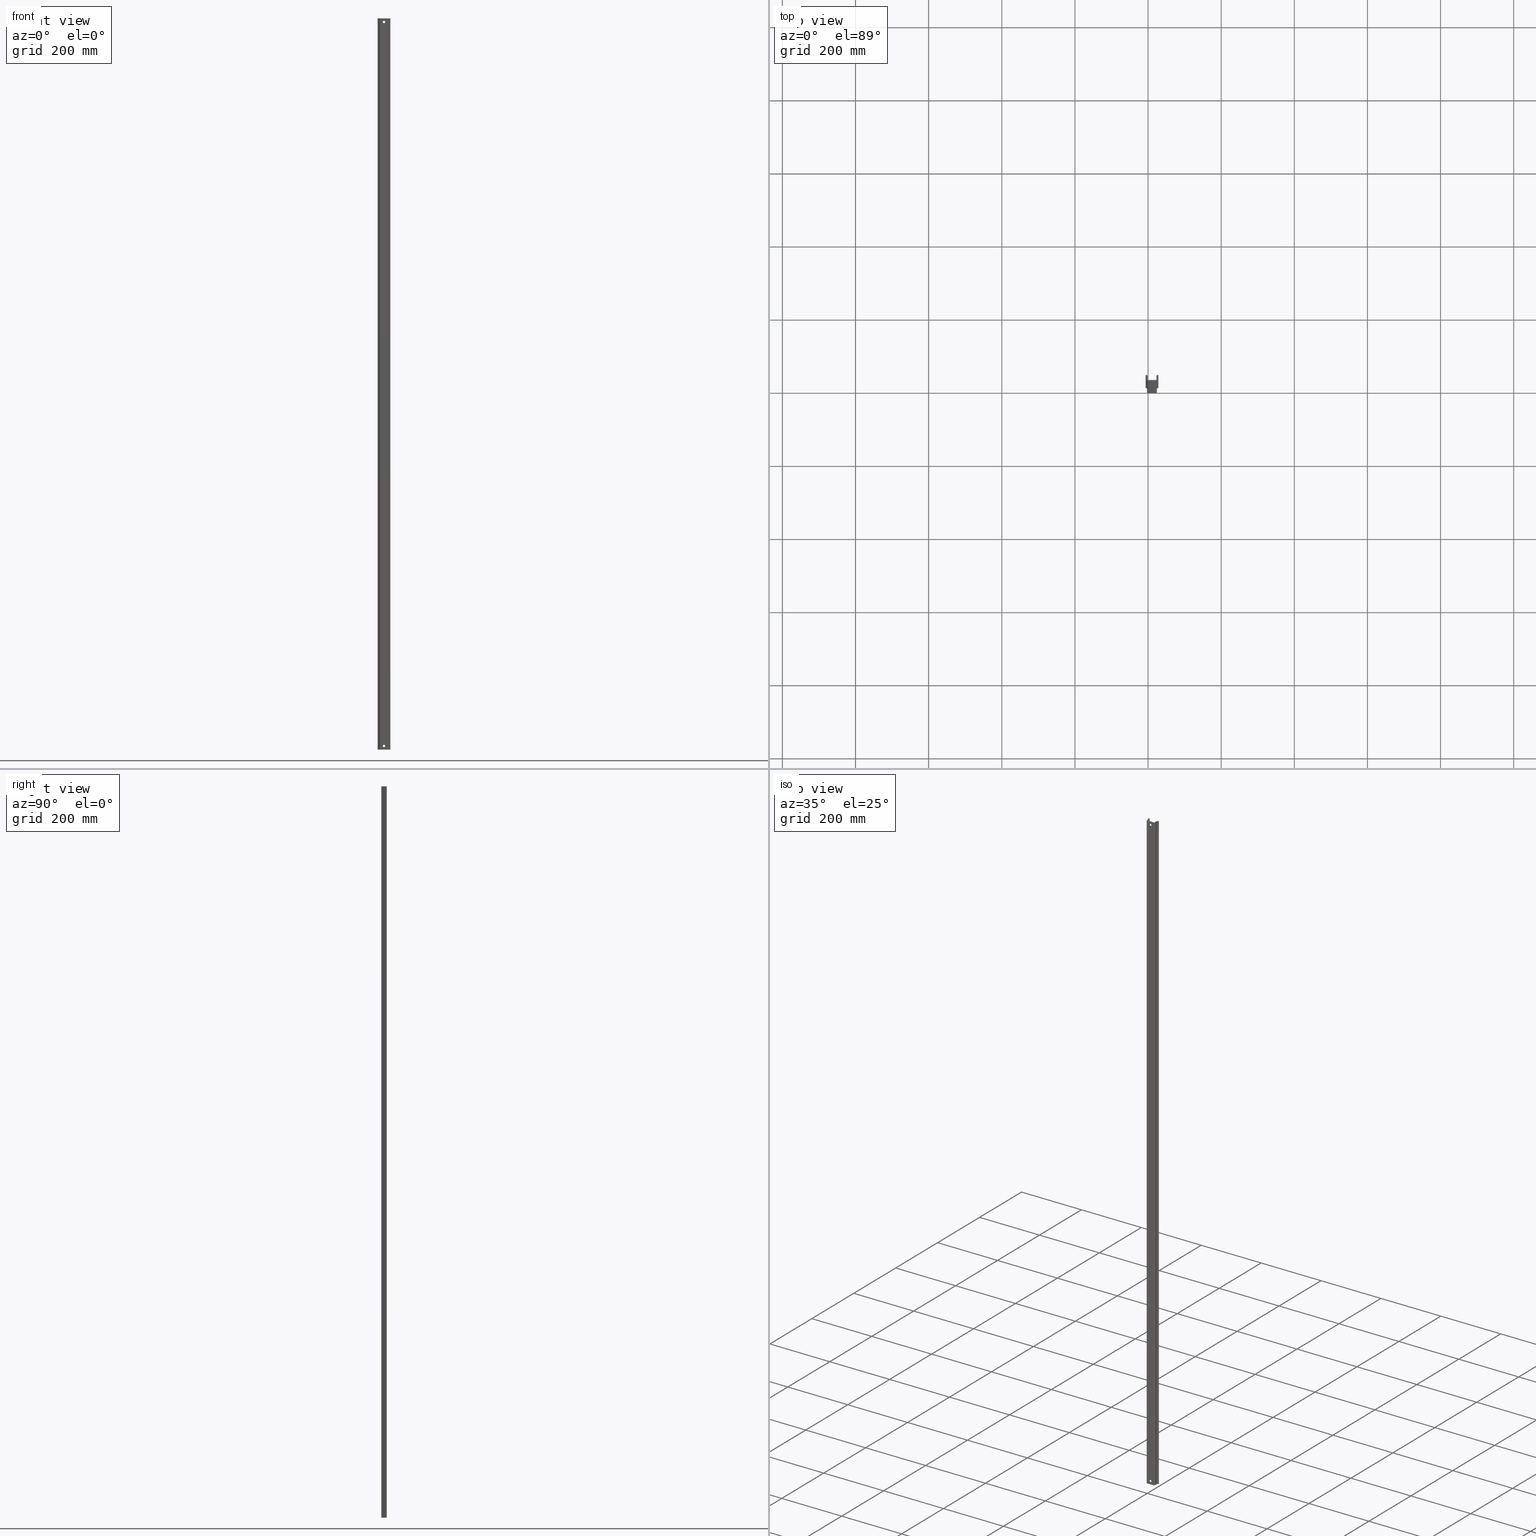
[diagram: canonical four-view strip — front | top / right | iso, engineering-drawing reading convention]
A machine part, canonical four-view strip (front | top / right | iso — engineering-drawing reading convention). The complete STEP part file that produces these views, byte-faithful:
ISO-10303-21;
HEADER;
FILE_DESCRIPTION (( 'STEP AP203' ),
    '1' );
FILE_NAME ('35x15 Galvaniz Kapl� D�z Montaj Raylar� - 2 m.STEP',
    '2019-01-04T05:34:26',
    ( '' ),
    ( '' ),
    'SwSTEP 2.0',
    'SolidWorks 2011',
    '' );
FILE_SCHEMA (( 'CONFIG_CONTROL_DESIGN' ));
ENDSEC;

DATA;
#1 = LINE ( 'NONE', #36, #530 ) ;
#2 = LINE ( 'NONE', #29, #542 ) ;
#3 = DIRECTION ( 'NONE',  ( 1.000000000000000000, 0.0000000000000000000, -0.0000000000000000000 ) ) ;
#4 = DIRECTION ( 'NONE',  ( 0.0000000000000000000, -1.000000000000000000, 0.0000000000000000000 ) ) ;
#5 = LINE ( 'NONE', #48, #949 ) ;
#6 = CARTESIAN_POINT ( 'NONE',  ( 10.80000000000001500, 1.500000000000001300, 1990.000000000000000 ) ) ;
#7 = DIRECTION ( 'NONE',  ( 0.0000000000000000000, 0.0000000000000000000, 1.000000000000000000 ) ) ;
#8 = LINE ( 'NONE', #21, #543 ) ;
#9 = PLANE ( 'NONE',  #951 ) ;
#10 = CARTESIAN_POINT ( 'NONE',  ( 10.49461781091140900, 15.00000000000005500, 0.0000000000000000000 ) ) ;
#11 = DIRECTION ( 'NONE',  ( -0.0000000000000000000, -0.0000000000000000000, -1.000000000000000000 ) ) ;
#12 = CARTESIAN_POINT ( 'NONE',  ( 0.0000000000000000000, 0.0000000000000000000, 2000.000000000000000 ) ) ;
#13 = FACE_OUTER_BOUND ( 'NONE', #735, .T. ) ;
#14 = CARTESIAN_POINT ( 'NONE',  ( -2.699999999999962900, -22.46146667334581400, 0.0000000000000000000 ) ) ;
#15 = DIRECTION ( 'NONE',  ( -0.0000000000000000000, -0.0000000000000000000, -1.000000000000000000 ) ) ;
#16 = DIRECTION ( 'NONE',  ( 0.0000000000000000000, -1.000000000000000000, 0.0000000000000000000 ) ) ;
#17 = CARTESIAN_POINT ( 'NONE',  ( -6.699999999999986900, -22.46146667334581400, 2000.000000000000000 ) ) ;
#18 = DIRECTION ( 'NONE',  ( 0.0000000000000000000, -1.000000000000000000, 0.0000000000000000000 ) ) ;
#19 = DIRECTION ( 'NONE',  ( -0.0000000000000000000, -0.0000000000000000000, -1.000000000000000000 ) ) ;
#20 = LINE ( 'NONE', #12, #532 ) ;
#21 = CARTESIAN_POINT ( 'NONE',  ( 21.60000000000014700, 1.500000000000001300, 2000.000000000000000 ) ) ;
#22 = DIRECTION ( 'NONE',  ( -1.000000000000000000, 0.0000000000000000000, 0.0000000000000000000 ) ) ;
#23 = CARTESIAN_POINT ( 'NONE',  ( 22.80000000000003300, 2.700000000000056600, 2000.000000000000000 ) ) ;
#24 = DIRECTION ( 'NONE',  ( -0.0000000000000000000, 0.0000000000000000000, -1.000000000000000000 ) ) ;
#25 = LINE ( 'NONE', #46, #523 ) ;
#26 = CARTESIAN_POINT ( 'NONE',  ( -6.699999999999986900, 13.99999999999993600, 2000.000000000000000 ) ) ;
#27 = LINE ( 'NONE', #38, #531 ) ;
#28 = DIRECTION ( 'NONE',  ( 0.0000000000000000000, 1.000000000000000000, 0.0000000000000000000 ) ) ;
#29 = CARTESIAN_POINT ( 'NONE',  ( 22.80000000000003300, -22.46146667334581400, 2000.000000000000000 ) ) ;
#30 = DIRECTION ( 'NONE',  ( -0.0000000000000000000, -0.0000000000000000000, -1.000000000000000000 ) ) ;
#31 = CARTESIAN_POINT ( 'NONE',  ( -1.040834085586084300E-014, 2.699999999999980200, 2000.000000000000000 ) ) ;
#32 = LINE ( 'NONE', #34, #954 ) ;
#33 = DIRECTION ( 'NONE',  ( -0.0000000000000000000, 0.0000000000000000000, 1.000000000000000000 ) ) ;
#34 = CARTESIAN_POINT ( 'NONE',  ( -2.699999999999962900, -22.46146667334581400, 2000.000000000000000 ) ) ;
#35 = DIRECTION ( 'NONE',  ( 1.000000000000000000, 0.0000000000000000000, 0.0000000000000000000 ) ) ;
#36 = CARTESIAN_POINT ( 'NONE',  ( 28.30000000000002200, 15.00000000000005500, 2000.000000000000000 ) ) ;
#37 = LINE ( 'NONE', #14, #529 ) ;
#38 = CARTESIAN_POINT ( 'NONE',  ( -2.699999999999962900, 12.30000000000013000, 2000.000000000000000 ) ) ;
#39 = DIRECTION ( 'NONE',  ( -0.0000000000000000000, -0.0000000000000000000, -1.000000000000000000 ) ) ;
#40 = CARTESIAN_POINT ( 'NONE',  ( -3.899999999999969300, 14.99999999999993100, 2000.000000000000000 ) ) ;
#41 = LINE ( 'NONE', #23, #525 ) ;
#42 = DIRECTION ( 'NONE',  ( -0.0000000000000000000, -0.0000000000000000000, -1.000000000000000000 ) ) ;
#43 = DIRECTION ( 'NONE',  ( -0.0000000000000000000, -0.0000000000000000000, -1.000000000000000000 ) ) ;
#44 = DIRECTION ( 'NONE',  ( -0.0000000000000000000, -0.0000000000000000000, -1.000000000000000000 ) ) ;
#45 = LINE ( 'NONE', #10, #945 ) ;
#46 = CARTESIAN_POINT ( 'NONE',  ( -3.899999999999969300, 13.49999999999993600, 2000.000000000000000 ) ) ;
#47 = DIRECTION ( 'NONE',  ( -0.0000000000000000000, 0.0000000000000000000, 1.000000000000000000 ) ) ;
#48 = CARTESIAN_POINT ( 'NONE',  ( 10.49461781091140900, 1.500000000000001300, 0.0000000000000000000 ) ) ;
#49 = CARTESIAN_POINT ( 'NONE',  ( -3.899999999999969300, 12.29999999999996300, 2000.000000000000000 ) ) ;
#50 = LINE ( 'NONE', #56, #459 ) ;
#51 = DIRECTION ( 'NONE',  ( 1.000000000000000000, 0.0000000000000000000, 0.0000000000000000000 ) ) ;
#52 = CARTESIAN_POINT ( 'NONE',  ( -1.040834085586084300E-014, 2.699999999999980200, 2000.000000000000000 ) ) ;
#53 = CARTESIAN_POINT ( 'NONE',  ( -2.699999999999962900, 2.699999999999980200, 2000.000000000000000 ) ) ;
#54 = CARTESIAN_POINT ( 'NONE',  ( 10.80000000000001500, 1.500000000000001300, 10.00000000000000900 ) ) ;
#55 = CARTESIAN_POINT ( 'NONE',  ( -1.199999999999961500, -22.46146667334581400, 0.0000000000000000000 ) ) ;
#56 = CARTESIAN_POINT ( 'NONE',  ( -1.199999999999961500, 2.699999999999980200, 2000.000000000000000 ) ) ;
#57 = DIRECTION ( 'NONE',  ( 0.0000000000000000000, 1.000000000000000000, 0.0000000000000000000 ) ) ;
#58 = DIRECTION ( 'NONE',  ( -0.0000000000000000000, -0.0000000000000000000, -1.000000000000000000 ) ) ;
#59 = DIRECTION ( 'NONE',  ( -0.0000000000000000000, -0.0000000000000000000, -1.000000000000000000 ) ) ;
#60 = CARTESIAN_POINT ( 'NONE',  ( -1.040834085586084300E-014, 2.699999999999980200, 0.0000000000000000000 ) ) ;
#61 = CARTESIAN_POINT ( 'NONE',  ( 10.80000000000001500, 1.500000000000001300, 10.00000000000000900 ) ) ;
#62 = DIRECTION ( 'NONE',  ( 0.0000000000000000000, 0.0000000000000000000, -1.000000000000000000 ) ) ;
#63 = DIRECTION ( 'NONE',  ( 0.0000000000000000000, 0.0000000000000000000, 1.000000000000000000 ) ) ;
#64 = DIRECTION ( 'NONE',  ( -0.0000000000000000000, 1.000000000000000000, -0.0000000000000000000 ) ) ;
#65 = CARTESIAN_POINT ( 'NONE',  ( 25.50000000000000400, 12.30000000000006100, 0.0000000000000000000 ) ) ;
#66 = DIRECTION ( 'NONE',  ( 1.000000000000000000, 0.0000000000000000000, 0.0000000000000000000 ) ) ;
#67 = DIRECTION ( 'NONE',  ( -0.0000000000000000000, 0.0000000000000000000, 1.000000000000000000 ) ) ;
#68 = LINE ( 'NONE', #115, #791 ) ;
#69 = LINE ( 'NONE', #77, #947 ) ;
#70 = DIRECTION ( 'NONE',  ( -0.0000000000000000000, 1.000000000000000000, -0.0000000000000000000 ) ) ;
#71 = LINE ( 'NONE', #55, #948 ) ;
#72 = CARTESIAN_POINT ( 'NONE',  ( 0.0000000000000000000, 1.500000000000001300, 2000.000000000000000 ) ) ;
#73 = DIRECTION ( 'NONE',  ( 1.000000000000000000, 0.0000000000000000000, 0.0000000000000000000 ) ) ;
#74 = LINE ( 'NONE', #72, #946 ) ;
#75 = DIRECTION ( 'NONE',  ( -0.0000000000000000000, -0.0000000000000000000, -1.000000000000000000 ) ) ;
#76 = CARTESIAN_POINT ( 'NONE',  ( 21.60000000000013600, 2.700000000000056600, 0.0000000000000000000 ) ) ;
#77 = CARTESIAN_POINT ( 'NONE',  ( 10.80000000000001500, -48.50000000000000000, 13.25000000000001100 ) ) ;
#78 = DIRECTION ( 'NONE',  ( -0.0000000000000000000, 0.0000000000000000000, 1.000000000000000000 ) ) ;
#79 = DIRECTION ( 'NONE',  ( 1.000000000000000000, 0.0000000000000000000, 0.0000000000000000000 ) ) ;
#80 = LINE ( 'NONE', #53, #827 ) ;
#81 = DIRECTION ( 'NONE',  ( -0.0000000000000000000, 0.0000000000000000000, 1.000000000000000000 ) ) ;
#82 = DIRECTION ( 'NONE',  ( 1.000000000000000000, 0.0000000000000000000, 0.0000000000000000000 ) ) ;
#83 = LINE ( 'NONE', #85, #534 ) ;
#84 = DIRECTION ( 'NONE',  ( 0.0000000000000000000, -1.000000000000000000, 0.0000000000000000000 ) ) ;
#85 = CARTESIAN_POINT ( 'NONE',  ( -4.833974596215169200, 13.49999999999993600, 2000.000000000000000 ) ) ;
#86 = DIRECTION ( 'NONE',  ( 0.0000000000000000000, 0.0000000000000000000, -1.000000000000000000 ) ) ;
#87 = CARTESIAN_POINT ( 'NONE',  ( 10.80000000000001500, 0.0000000000000000000, 1990.000000000000000 ) ) ;
#88 = DIRECTION ( 'NONE',  ( -0.0000000000000000000, 1.000000000000000000, -0.0000000000000000000 ) ) ;
#89 = CARTESIAN_POINT ( 'NONE',  ( -1.040834085586084300E-014, 2.699999999999980200, 0.0000000000000000000 ) ) ;
#90 = DIRECTION ( 'NONE',  ( -0.0000000000000000000, -0.0000000000000000000, -1.000000000000000000 ) ) ;
#91 = DIRECTION ( 'NONE',  ( -0.0000000000000000000, 0.0000000000000000000, 1.000000000000000000 ) ) ;
#92 = LINE ( 'NONE', #93, #803 ) ;
#93 = CARTESIAN_POINT ( 'NONE',  ( 21.60000000000014700, 0.0000000000000000000, 2000.000000000000000 ) ) ;
#94 = DIRECTION ( 'NONE',  ( -0.0000000000000000000, -0.0000000000000000000, -1.000000000000000000 ) ) ;
#95 = CARTESIAN_POINT ( 'NONE',  ( 21.60000000000013600, 2.700000000000056600, 2000.000000000000000 ) ) ;
#96 = DIRECTION ( 'NONE',  ( -0.0000000000000000000, -0.0000000000000000000, -1.000000000000000000 ) ) ;
#97 = DIRECTION ( 'NONE',  ( 0.0000000000000000000, 1.000000000000000000, 0.0000000000000000000 ) ) ;
#98 = CARTESIAN_POINT ( 'NONE',  ( 18.45816349009776800, 7.258890409779502800, 2000.000000000000000 ) ) ;
#99 = DIRECTION ( 'NONE',  ( 1.000000000000000000, 0.0000000000000000000, 0.0000000000000000000 ) ) ;
#100 = CARTESIAN_POINT ( 'NONE',  ( 10.80000000000001500, 1.500000000000001300, 1990.000000000000000 ) ) ;
#101 = DIRECTION ( 'NONE',  ( -0.0000000000000000000, 0.0000000000000000000, 1.000000000000000000 ) ) ;
#102 = CARTESIAN_POINT ( 'NONE',  ( -6.699999999999986900, 14.99999999999993100, 2000.000000000000000 ) ) ;
#103 = CARTESIAN_POINT ( 'NONE',  ( 21.60000000000013600, 2.700000000000056600, 0.0000000000000000000 ) ) ;
#104 = DIRECTION ( 'NONE',  ( 0.0000000000000000000, -1.000000000000000000, 0.0000000000000000000 ) ) ;
#105 = LINE ( 'NONE', #143, #826 ) ;
#106 = LINE ( 'NONE', #112, #800 ) ;
#107 = PLANE ( 'NONE',  #787 ) ;
#108 = LINE ( 'NONE', #102, #781 ) ;
#109 = DIRECTION ( 'NONE',  ( 1.000000000000000000, 0.0000000000000000000, 0.0000000000000000000 ) ) ;
#110 = DIRECTION ( 'NONE',  ( 0.0000000000000000000, -1.000000000000000000, 0.0000000000000000000 ) ) ;
#111 = DIRECTION ( 'NONE',  ( 0.9659258262890818600, -0.2588190451024701700, 0.0000000000000000000 ) ) ;
#112 = CARTESIAN_POINT ( 'NONE',  ( -6.699999999999986900, -22.46146667334581400, 0.0000000000000000000 ) ) ;
#113 = CARTESIAN_POINT ( 'NONE',  ( -3.899999999999969300, 12.29999999999996300, 2000.000000000000000 ) ) ;
#114 = CARTESIAN_POINT ( 'NONE',  ( -3.899999999999969300, 12.29999999999996300, 0.0000000000000000000 ) ) ;
#115 = CARTESIAN_POINT ( 'NONE',  ( 10.49461781091140900, 14.99999999999993100, 0.0000000000000000000 ) ) ;
#116 = DIRECTION ( 'NONE',  ( 0.0000000000000000000, 0.0000000000000000000, 1.000000000000000000 ) ) ;
#117 = DIRECTION ( 'NONE',  ( -0.0000000000000000000, 0.0000000000000000000, 1.000000000000000000 ) ) ;
#118 = DIRECTION ( 'NONE',  ( 1.000000000000000000, 0.0000000000000000000, 0.0000000000000000000 ) ) ;
#119 = DIRECTION ( 'NONE',  ( -0.0000000000000000000, 0.0000000000000000000, 1.000000000000000000 ) ) ;
#120 = DIRECTION ( 'NONE',  ( 1.000000000000000000, 0.0000000000000000000, 0.0000000000000000000 ) ) ;
#121 = DIRECTION ( 'NONE',  ( -0.0000000000000000000, 0.0000000000000000000, 1.000000000000000000 ) ) ;
#122 = DIRECTION ( 'NONE',  ( 1.000000000000000000, 0.0000000000000000000, 0.0000000000000000000 ) ) ;
#123 = LINE ( 'NONE', #128, #794 ) ;
#124 = DIRECTION ( 'NONE',  ( 1.000000000000000000, 0.0000000000000000000, 0.0000000000000000000 ) ) ;
#125 = LINE ( 'NONE', #98, #807 ) ;
#126 = DIRECTION ( 'NONE',  ( -0.0000000000000000000, 0.0000000000000000000, 1.000000000000000000 ) ) ;
#127 = LINE ( 'NONE', #129, #795 ) ;
#128 = CARTESIAN_POINT ( 'NONE',  ( 10.49461781091140900, 1.500000000000001300, 2000.000000000000000 ) ) ;
#129 = CARTESIAN_POINT ( 'NONE',  ( -1.199999999999961500, -22.46146667334581400, 2000.000000000000000 ) ) ;
#130 = DIRECTION ( 'NONE',  ( 1.000000000000000000, 0.0000000000000000000, 0.0000000000000000000 ) ) ;
#131 = SHAPE_DEFINITION_REPRESENTATION ( #959, #942 ) ;
#132 = DIRECTION ( 'NONE',  ( -0.9659258262890818600, 0.2588190451024701700, 0.0000000000000000000 ) ) ;
#133 = FACE_OUTER_BOUND ( 'NONE', #738, .T. ) ;
#134 = DIRECTION ( 'NONE',  ( 0.0000000000000000000, 0.0000000000000000000, 1.000000000000000000 ) ) ;
#135 = LINE ( 'NONE', #141, #824 ) ;
#136 =( NAMED_UNIT ( * ) PLANE_ANGLE_UNIT ( ) SI_UNIT ( $, .RADIAN. ) );
#137 = APPLICATION_PROTOCOL_DEFINITION ( 'international standard', 'config_control_design', 1994, #778 ) ;
#138 = MECHANICAL_CONTEXT ( 'NONE', #778, 'mechanical' ) ;
#139 = CARTESIAN_POINT ( 'NONE',  ( 0.0000000000000000000, 0.0000000000000000000, 0.0000000000000000000 ) ) ;
#140 = CARTESIAN_POINT ( 'NONE',  ( 10.80000000000001500, 0.0000000000000000000, 1990.000000000000000 ) ) ;
#141 = CARTESIAN_POINT ( 'NONE',  ( 22.80000000000003300, -22.46146667334581400, 0.0000000000000000000 ) ) ;
#142 = CARTESIAN_POINT ( 'NONE',  ( 25.50000000000000400, 15.00000000000005500, 2000.000000000000000 ) ) ;
#143 = CARTESIAN_POINT ( 'NONE',  ( 10.80000000000001500, -48.50000000000000000, 6.750000000000008000 ) ) ;
#144 = DIRECTION ( 'NONE',  ( -0.0000000000000000000, 1.000000000000000000, -0.0000000000000000000 ) ) ;
#145 = CARTESIAN_POINT ( 'NONE',  ( 18.45816349009776800, 7.258890409779502800, 2000.000000000000000 ) ) ;
#146 = DIRECTION ( 'NONE',  ( 0.2588190451024701700, 0.9659258262890818600, -0.0000000000000000000 ) ) ;
#147 = DIRECTION ( 'NONE',  ( 1.000000000000000000, 0.0000000000000000000, 0.0000000000000000000 ) ) ;
#148 = DIRECTION ( 'NONE',  ( -0.0000000000000000000, 1.000000000000000000, -0.0000000000000000000 ) ) ;
#149 = DIRECTION ( 'NONE',  ( 0.0000000000000000000, -1.000000000000000000, 0.0000000000000000000 ) ) ;
#150 = LINE ( 'NONE', #166, #813 ) ;
#151 = CYLINDRICAL_SURFACE ( 'NONE', #816, 2.699999999999987300 ) ;
#152 = DIRECTION ( 'NONE',  ( -1.000000000000000000, 0.0000000000000000000, 0.0000000000000000000 ) ) ;
#153 = FACE_OUTER_BOUND ( 'NONE', #725, .T. ) ;
#154 = PLANE ( 'NONE',  #817 ) ;
#155 = DIRECTION ( 'NONE',  ( 0.0000000000000000000, 1.000000000000000000, 0.0000000000000000000 ) ) ;
#156 = LINE ( 'NONE', #142, #820 ) ;
#157 = LINE ( 'NONE', #162, #814 ) ;
#158 = CARTESIAN_POINT ( 'NONE',  ( 10.49461781091140900, 14.99999999999993100, 2000.000000000000000 ) ) ;
#159 = DIRECTION ( 'NONE',  ( 0.0000000000000000000, -0.0000000000000000000, 1.000000000000000000 ) ) ;
#160 = FACE_OUTER_BOUND ( 'NONE', #744, .T. ) ;
#161 =( NAMED_UNIT ( * ) SI_UNIT ( $, .STERADIAN. ) SOLID_ANGLE_UNIT ( ) );
#162 = CARTESIAN_POINT ( 'NONE',  ( 10.80000000000001500, -48.50000000000000000, 1986.750000000000000 ) ) ;
#163 = CARTESIAN_POINT ( 'NONE',  ( -3.899999999999969300, 12.29999999999996300, 0.0000000000000000000 ) ) ;
#164 = DIRECTION ( 'NONE',  ( 0.0000000000000000000, 1.000000000000000000, 0.0000000000000000000 ) ) ;
#165 = DIRECTION ( 'NONE',  ( 1.000000000000000000, 0.0000000000000000000, 0.0000000000000000000 ) ) ;
#166 = CARTESIAN_POINT ( 'NONE',  ( 10.80000000000001500, -48.50000000000000000, 1993.250000000000000 ) ) ;
#167 = CARTESIAN_POINT ( 'NONE',  ( -3.899999999999969300, 12.29999999999996300, 2000.000000000000000 ) ) ;
#168 = DIRECTION ( 'NONE',  ( -0.0000000000000000000, 1.000000000000000000, -0.0000000000000000000 ) ) ;
#169 = DIRECTION ( 'NONE',  ( -0.0000000000000000000, 0.0000000000000000000, 1.000000000000000000 ) ) ;
#170 = DIRECTION ( 'NONE',  ( -0.0000000000000000000, -0.0000000000000000000, -1.000000000000000000 ) ) ;
#171 = DIRECTION ( 'NONE',  ( -0.0000000000000000000, -0.0000000000000000000, -1.000000000000000000 ) ) ;
#172 =( LENGTH_UNIT ( ) NAMED_UNIT ( * ) SI_UNIT ( .MILLI., .METRE. ) );
#173 = PERSON_AND_ORGANIZATION_ROLE ( 'creator' ) ;
#174 = COORDINATED_UNIVERSAL_TIME_OFFSET ( 3, 0, .AHEAD. ) ;
#175 = APPROVAL_DATE_TIME ( #193, #869 ) ;
#176 = PERSON_AND_ORGANIZATION ( #941, #806 ) ;
#177 = DATE_AND_TIME ( #190, #821 ) ;
#178 = PERSON_AND_ORGANIZATION ( #941, #806 ) ;
#179 = APPROVAL_DATE_TIME ( #177, #873 ) ;
#180 = CALENDAR_DATE ( 2019, 4, 1 ) ;
#181 = PERSON_AND_ORGANIZATION_ROLE ( 'classification_officer' ) ;
#182 = COORDINATED_UNIVERSAL_TIME_OFFSET ( 3, 0, .AHEAD. ) ;
#183 = DIRECTION ( 'NONE',  ( 1.000000000000000000, 0.0000000000000000000, 0.0000000000000000000 ) ) ;
#184 = DATE_TIME_ROLE ( 'creation_date' ) ;
#185 = APPROVAL_STATUS ( 'not_yet_approved' ) ;
#186 = PERSON_AND_ORGANIZATION ( #941, #806 ) ;
#187 = PERSON_AND_ORGANIZATION_ROLE ( 'design_owner' ) ;
#188 = COORDINATED_UNIVERSAL_TIME_OFFSET ( 3, 0, .AHEAD. ) ;
#189 = APPROVAL_ROLE ( '' ) ;
#190 = CALENDAR_DATE ( 2019, 4, 1 ) ;
#191 = PERSON_AND_ORGANIZATION ( #941, #806 ) ;
#192 = COORDINATED_UNIVERSAL_TIME_OFFSET ( 3, 0, .AHEAD. ) ;
#193 = DATE_AND_TIME ( #196, #785 ) ;
#194 = SECURITY_CLASSIFICATION_LEVEL ( 'unclassified' ) ;
#195 = DATE_TIME_ROLE ( 'classification_date' ) ;
#196 = CALENDAR_DATE ( 2019, 4, 1 ) ;
#197 = PERSON_AND_ORGANIZATION ( #941, #806 ) ;
#198 = PERSON_AND_ORGANIZATION ( #941, #806 ) ;
#199 = DATE_AND_TIME ( #201, #797 ) ;
#200 = APPROVAL_ROLE ( '' ) ;
#201 = CALENDAR_DATE ( 2019, 4, 1 ) ;
#202 = APPROVAL_STATUS ( 'not_yet_approved' ) ;
#203 = APPROVAL_ROLE ( '' ) ;
#204 = APPLICATION_PROTOCOL_DEFINITION ( 'international standard', 'config_control_design', 1994, #779 ) ;
#205 = COORDINATED_UNIVERSAL_TIME_OFFSET ( 3, 0, .AHEAD. ) ;
#206 = PERSON_AND_ORGANIZATION_ROLE ( 'creator' ) ;
#207 = DATE_AND_TIME ( #180, #809 ) ;
#208 = APPROVAL_STATUS ( 'not_yet_approved' ) ;
#209 = PERSON_AND_ORGANIZATION ( #941, #806 ) ;
#210 = CALENDAR_DATE ( 2019, 4, 1 ) ;
#211 = DIRECTION ( 'NONE',  ( 0.0000000000000000000, 0.0000000000000000000, 1.000000000000000000 ) ) ;
#212 = APPROVAL_DATE_TIME ( #207, #874 ) ;
#213 = DATE_AND_TIME ( #210, #829 ) ;
#214 = PERSON_AND_ORGANIZATION ( #941, #806 ) ;
#215 = PERSON_AND_ORGANIZATION_ROLE ( 'design_supplier' ) ;
#216 = CYLINDRICAL_SURFACE ( 'NONE', #512, 1.199999999999965100 ) ;
#217 = CARTESIAN_POINT ( 'NONE',  ( 24.30000000000003300, 2.700000000000056600, 0.0000000000000000000 ) ) ;
#218 = DIRECTION ( 'NONE',  ( -1.000000000000000000, 0.0000000000000000000, 0.0000000000000000000 ) ) ;
#219 = CARTESIAN_POINT ( 'NONE',  ( 25.50000000000000400, 15.00000000000005500, 2000.000000000000000 ) ) ;
#220 = LINE ( 'NONE', #221, #505 ) ;
#221 = CARTESIAN_POINT ( 'NONE',  ( 2.571985587199523900, 7.106199315235241600, 0.0000000000000000000 ) ) ;
#222 = CARTESIAN_POINT ( 'NONE',  ( 0.0000000000000000000, 1.500000000000001300, 0.0000000000000000000 ) ) ;
#223 = CARTESIAN_POINT ( 'NONE',  ( 24.30000000000003300, 12.30000000000022800, 0.0000000000000000000 ) ) ;
#224 = CARTESIAN_POINT ( 'NONE',  ( 0.0000000000000000000, 0.0000000000000000000, 2000.000000000000000 ) ) ;
#225 = CARTESIAN_POINT ( 'NONE',  ( 21.60000000000014700, 0.0000000000000000000, 0.0000000000000000000 ) ) ;
#226 = CARTESIAN_POINT ( 'NONE',  ( 28.30000000000002200, 14.00000000000005300, 2000.000000000000000 ) ) ;
#227 = CARTESIAN_POINT ( 'NONE',  ( -1.040834085586084300E-014, 2.699999999999980200, 2000.000000000000000 ) ) ;
#228 = CARTESIAN_POINT ( 'NONE',  ( -6.699999999999986900, 14.99999999999993100, 0.0000000000000000000 ) ) ;
#229 = CARTESIAN_POINT ( 'NONE',  ( -3.899999999999969300, 13.49999999999993600, 2000.000000000000000 ) ) ;
#230 = CARTESIAN_POINT ( 'NONE',  ( -2.699999999999962900, 2.699999999999980200, 2000.000000000000000 ) ) ;
#231 = CARTESIAN_POINT ( 'NONE',  ( 28.30000000000002200, 15.00000000000005500, 0.0000000000000000000 ) ) ;
#232 = CARTESIAN_POINT ( 'NONE',  ( -1.199999999999961500, 2.699999999999980200, 0.0000000000000000000 ) ) ;
#233 = CARTESIAN_POINT ( 'NONE',  ( -1.199999999999961500, 12.30000000000013000, 0.0000000000000000000 ) ) ;
#234 = CARTESIAN_POINT ( 'NONE',  ( 10.80000000000001500, 0.0000000000000000000, 6.750000000000008000 ) ) ;
#235 = CARTESIAN_POINT ( 'NONE',  ( 22.80000000000003300, 12.30000000000021400, 2000.000000000000000 ) ) ;
#236 = CARTESIAN_POINT ( 'NONE',  ( -6.699999999999986900, 13.99999999999993600, 0.0000000000000000000 ) ) ;
#237 = FACE_OUTER_BOUND ( 'NONE', #750, .T. ) ;
#238 = DIRECTION ( 'NONE',  ( -1.000000000000000000, 0.0000000000000000000, 0.0000000000000000000 ) ) ;
#239 = CARTESIAN_POINT ( 'NONE',  ( -2.699999999999962900, 12.30000000000013000, 2000.000000000000000 ) ) ;
#240 = CARTESIAN_POINT ( 'NONE',  ( 10.80000000000001500, 0.0000000000000000000, 1986.750000000000000 ) ) ;
#241 = CARTESIAN_POINT ( 'NONE',  ( -1.199999999999961500, 12.30000000000013000, 2000.000000000000000 ) ) ;
#242 = CARTESIAN_POINT ( 'NONE',  ( 10.80000000000001500, 1.500000000000001300, 6.750000000000008000 ) ) ;
#243 = CARTESIAN_POINT ( 'NONE',  ( 21.60000000000013600, 2.700000000000056600, 2000.000000000000000 ) ) ;
#244 = CARTESIAN_POINT ( 'NONE',  ( 21.60000000000014700, 1.500000000000001300, 2000.000000000000000 ) ) ;
#245 = CARTESIAN_POINT ( 'NONE',  ( -4.833974596215169200, 13.49999999999993600, 0.0000000000000000000 ) ) ;
#246 = CARTESIAN_POINT ( 'NONE',  ( 10.80000000000001500, 0.0000000000000000000, 1993.250000000000000 ) ) ;
#247 = CARTESIAN_POINT ( 'NONE',  ( 28.30000000000002200, 14.00000000000005300, 0.0000000000000000000 ) ) ;
#248 = CARTESIAN_POINT ( 'NONE',  ( 28.30000000000002200, 15.00000000000005500, 2000.000000000000000 ) ) ;
#249 = CARTESIAN_POINT ( 'NONE',  ( 21.60000000000014700, 1.500000000000001300, 0.0000000000000000000 ) ) ;
#250 = CARTESIAN_POINT ( 'NONE',  ( 24.30000000000003300, 2.700000000000056600, 2000.000000000000000 ) ) ;
#251 = CARTESIAN_POINT ( 'NONE',  ( 10.80000000000001500, 1.500000000000001300, 1986.750000000000000 ) ) ;
#252 = CARTESIAN_POINT ( 'NONE',  ( -2.699999999999962900, 2.699999999999980200, 0.0000000000000000000 ) ) ;
#253 = CARTESIAN_POINT ( 'NONE',  ( 24.30000000000003300, 12.30000000000022800, 2000.000000000000000 ) ) ;
#254 = CARTESIAN_POINT ( 'NONE',  ( 22.80000000000003300, 2.700000000000056600, 2000.000000000000000 ) ) ;
#255 = CARTESIAN_POINT ( 'NONE',  ( 22.80000000000003300, 12.30000000000021400, 0.0000000000000000000 ) ) ;
#256 = DIRECTION ( 'NONE',  ( -0.0000000000000000000, -0.0000000000000000000, -1.000000000000000000 ) ) ;
#257 = CARTESIAN_POINT ( 'NONE',  ( -3.899999999999969300, 14.99999999999993100, 2000.000000000000000 ) ) ;
#258 = DIRECTION ( 'NONE',  ( 1.000000000000000000, 0.0000000000000000000, 0.0000000000000000000 ) ) ;
#259 = CARTESIAN_POINT ( 'NONE',  ( 25.50000000000000400, 15.00000000000005500, 0.0000000000000000000 ) ) ;
#260 = CARTESIAN_POINT ( 'NONE',  ( 25.50000000000000400, 13.50000000000004600, 2000.000000000000000 ) ) ;
#261 = CARTESIAN_POINT ( 'NONE',  ( 10.80000000000001500, 0.0000000000000000000, 13.25000000000001100 ) ) ;
#262 = LINE ( 'NONE', #319, #510 ) ;
#263 = CARTESIAN_POINT ( 'NONE',  ( 21.60000000000014700, 0.0000000000000000000, 2000.000000000000000 ) ) ;
#264 = CARTESIAN_POINT ( 'NONE',  ( -3.899999999999969300, 14.99999999999993100, 0.0000000000000000000 ) ) ;
#265 = CARTESIAN_POINT ( 'NONE',  ( 10.80000000000001500, 1.500000000000001300, 1993.250000000000000 ) ) ;
#266 = CARTESIAN_POINT ( 'NONE',  ( 25.50000000000000400, 13.50000000000004600, 0.0000000000000000000 ) ) ;
#267 = CARTESIAN_POINT ( 'NONE',  ( 22.80000000000003300, 2.700000000000056600, 0.0000000000000000000 ) ) ;
#268 = CARTESIAN_POINT ( 'NONE',  ( -1.199999999999961500, 2.699999999999980200, 2000.000000000000000 ) ) ;
#269 = LINE ( 'NONE', #271, #513 ) ;
#270 = DIRECTION ( 'NONE',  ( -0.0000000000000000000, 0.0000000000000000000, 1.000000000000000000 ) ) ;
#271 = CARTESIAN_POINT ( 'NONE',  ( 10.49461781091140900, 15.00000000000005500, 2000.000000000000000 ) ) ;
#272 = CARTESIAN_POINT ( 'NONE',  ( 10.80000000000001500, 1.500000000000001300, 13.25000000000001100 ) ) ;
#273 = CARTESIAN_POINT ( 'NONE',  ( 0.0000000000000000000, 1.500000000000001300, 2000.000000000000000 ) ) ;
#274 = FACE_OUTER_BOUND ( 'NONE', #745, .T. ) ;
#275 = DIRECTION ( 'NONE',  ( 1.000000000000000000, 0.0000000000000000000, -0.0000000000000000000 ) ) ;
#276 = CARTESIAN_POINT ( 'NONE',  ( 10.80000000000001500, -48.50000000000000000, 10.00000000000000900 ) ) ;
#277 = CYLINDRICAL_SURFACE ( 'NONE', #491, 3.250000000000001300 ) ;
#278 = DIRECTION ( 'NONE',  ( -0.0000000000000000000, -0.0000000000000000000, -1.000000000000000000 ) ) ;
#279 = DIRECTION ( 'NONE',  ( -0.9659258262890811900, -0.2588190451024724400, 0.0000000000000000000 ) ) ;
#280 = DIRECTION ( 'NONE',  ( 0.0000000000000000000, 0.0000000000000000000, 1.000000000000000000 ) ) ;
#281 = PLANE ( 'NONE',  #504 ) ;
#282 = CARTESIAN_POINT ( 'NONE',  ( 25.50000000000000400, 12.30000000000006100, 2000.000000000000000 ) ) ;
#283 = DIRECTION ( 'NONE',  ( -0.0000000000000000000, 0.0000000000000000000, -1.000000000000000000 ) ) ;
#284 = CARTESIAN_POINT ( 'NONE',  ( 10.80000000000001500, -48.50000000000000000, 1990.000000000000000 ) ) ;
#285 = DIRECTION ( 'NONE',  ( -0.0000000000000000000, 1.000000000000000000, -0.0000000000000000000 ) ) ;
#286 = CARTESIAN_POINT ( 'NONE',  ( 10.80000000000001500, -48.50000000000000000, 1990.000000000000000 ) ) ;
#287 = FACE_OUTER_BOUND ( 'NONE', #742, .T. ) ;
#288 = DIRECTION ( 'NONE',  ( 1.000000000000000000, 0.0000000000000000000, 0.0000000000000000000 ) ) ;
#289 = CARTESIAN_POINT ( 'NONE',  ( -2.699999999999962900, -22.46146667334581400, 2000.000000000000000 ) ) ;
#290 = CYLINDRICAL_SURFACE ( 'NONE', #514, 3.250000000000001300 ) ;
#291 = DIRECTION ( 'NONE',  ( 0.0000000000000000000, 0.0000000000000000000, 1.000000000000000000 ) ) ;
#292 = CYLINDRICAL_SURFACE ( 'NONE', #473, 1.199999999999991100 ) ;
#293 = DIRECTION ( 'NONE',  ( -0.0000000000000000000, -0.0000000000000000000, -1.000000000000000000 ) ) ;
#294 = DIRECTION ( 'NONE',  ( -1.000000000000000000, 0.0000000000000000000, 0.0000000000000000000 ) ) ;
#295 = FACE_OUTER_BOUND ( 'NONE', #763, .T. ) ;
#296 = CARTESIAN_POINT ( 'NONE',  ( 10.49461781091140900, -22.46146667334581400, 0.0000000000000000000 ) ) ;
#297 = DIRECTION ( 'NONE',  ( -0.0000000000000000000, 1.000000000000000000, -0.0000000000000000000 ) ) ;
#298 = FACE_OUTER_BOUND ( 'NONE', #730, .T. ) ;
#299 = PLANE ( 'NONE',  #477 ) ;
#300 = FACE_OUTER_BOUND ( 'NONE', #726, .T. ) ;
#301 = FACE_OUTER_BOUND ( 'NONE', #739, .T. ) ;
#302 = DIRECTION ( 'NONE',  ( 1.000000000000000000, 0.0000000000000000000, -0.0000000000000000000 ) ) ;
#303 = CARTESIAN_POINT ( 'NONE',  ( 10.80000000000001500, -48.50000000000000000, 10.00000000000000900 ) ) ;
#304 = CYLINDRICAL_SURFACE ( 'NONE', #486, 3.249999999999975100 ) ;
#305 = DIRECTION ( 'NONE',  ( -0.0000000000000000000, 0.0000000000000000000, -1.000000000000000000 ) ) ;
#306 = CYLINDRICAL_SURFACE ( 'NONE', #496, 3.249999999999975100 ) ;
#307 = DIRECTION ( 'NONE',  ( -0.0000000000000000000, 1.000000000000000000, -0.0000000000000000000 ) ) ;
#308 = FACE_OUTER_BOUND ( 'NONE', #757, .T. ) ;
#309 = FACE_OUTER_BOUND ( 'NONE', #737, .T. ) ;
#310 = CARTESIAN_POINT ( 'NONE',  ( 28.30000000000002200, -22.46146667334581400, 2000.000000000000000 ) ) ;
#311 = FACE_OUTER_BOUND ( 'NONE', #752, .T. ) ;
#312 = DIRECTION ( 'NONE',  ( -0.0000000000000000000, 0.0000000000000000000, 1.000000000000000000 ) ) ;
#313 = CARTESIAN_POINT ( 'NONE',  ( -3.899999999999969300, 12.29999999999996300, 2000.000000000000000 ) ) ;
#314 = DIRECTION ( 'NONE',  ( 0.0000000000000000000, 0.0000000000000000000, 1.000000000000000000 ) ) ;
#315 = PLANE ( 'NONE',  #474 ) ;
#316 = DIRECTION ( 'NONE',  ( -0.0000000000000000000, 0.0000000000000000000, -1.000000000000000000 ) ) ;
#317 = DIRECTION ( 'NONE',  ( 0.0000000000000000000, 0.0000000000000000000, 1.000000000000000000 ) ) ;
#318 = FACE_OUTER_BOUND ( 'NONE', #720, .T. ) ;
#319 = CARTESIAN_POINT ( 'NONE',  ( 26.43397459621518300, 13.50000000000004600, 2000.000000000000000 ) ) ;
#320 = CARTESIAN_POINT ( 'NONE',  ( 24.30000000000003300, -22.46146667334581400, 2000.000000000000000 ) ) ;
#321 = DIRECTION ( 'NONE',  ( 1.000000000000000000, 0.0000000000000000000, -0.0000000000000000000 ) ) ;
#322 = CYLINDRICAL_SURFACE ( 'NONE', #502, 1.199999999999975300 ) ;
#323 = PLANE ( 'NONE',  #515 ) ;
#324 = DIRECTION ( 'NONE',  ( -0.0000000000000000000, 1.000000000000000000, -0.0000000000000000000 ) ) ;
#325 = DIRECTION ( 'NONE',  ( -0.0000000000000000000, -0.0000000000000000000, -1.000000000000000000 ) ) ;
#326 = PLANE ( 'NONE',  #478 ) ;
#327 = CARTESIAN_POINT ( 'NONE',  ( 28.30000000000002200, 14.00000000000005300, 2000.000000000000000 ) ) ;
#328 = LINE ( 'NONE', #356, #475 ) ;
#329 = DIRECTION ( 'NONE',  ( 0.0000000000000000000, -0.0000000000000000000, -1.000000000000000000 ) ) ;
#330 = DIRECTION ( 'NONE',  ( -1.000000000000000000, 0.0000000000000000000, 0.0000000000000000000 ) ) ;
#331 = LINE ( 'NONE', #346, #489 ) ;
#332 = CARTESIAN_POINT ( 'NONE',  ( 24.30000000000003300, -22.46146667334581400, 0.0000000000000000000 ) ) ;
#333 = DIRECTION ( 'NONE',  ( 0.0000000000000000000, -1.000000000000000000, 0.0000000000000000000 ) ) ;
#334 = DIRECTION ( 'NONE',  ( -0.0000000000000000000, -0.0000000000000000000, -1.000000000000000000 ) ) ;
#335 = CARTESIAN_POINT ( 'NONE',  ( 25.50000000000000400, 12.30000000000006100, 0.0000000000000000000 ) ) ;
#336 = CARTESIAN_POINT ( 'NONE',  ( 25.50000000000000400, 13.50000000000004600, 2000.000000000000000 ) ) ;
#337 = FACE_OUTER_BOUND ( 'NONE', #716, .T. ) ;
#338 = CARTESIAN_POINT ( 'NONE',  ( -1.040834085586084300E-014, 2.699999999999980200, 2000.000000000000000 ) ) ;
#339 = CARTESIAN_POINT ( 'NONE',  ( 10.49461781091140900, 13.49999999999993600, 2000.000000000000000 ) ) ;
#340 = DIRECTION ( 'NONE',  ( 0.0000000000000000000, -0.0000000000000000000, -1.000000000000000000 ) ) ;
#341 = DIRECTION ( 'NONE',  ( 0.0000000000000000000, 1.000000000000000000, 0.0000000000000000000 ) ) ;
#342 = CYLINDRICAL_SURFACE ( 'NONE', #469, 2.699999999999983700 ) ;
#343 = DIRECTION ( 'NONE',  ( -0.0000000000000000000, -0.0000000000000000000, -1.000000000000000000 ) ) ;
#344 = CARTESIAN_POINT ( 'NONE',  ( 25.50000000000000400, 12.30000000000006100, 2000.000000000000000 ) ) ;
#345 = DIRECTION ( 'NONE',  ( 0.0000000000000000000, -1.000000000000000000, 0.0000000000000000000 ) ) ;
#346 = CARTESIAN_POINT ( 'NONE',  ( 2.571985587199523900, 7.106199315235241600, 2000.000000000000000 ) ) ;
#347 = DIRECTION ( 'NONE',  ( 1.000000000000000000, 0.0000000000000000000, 0.0000000000000000000 ) ) ;
#348 = DIRECTION ( 'NONE',  ( -0.0000000000000000000, -0.0000000000000000000, -1.000000000000000000 ) ) ;
#349 = LINE ( 'NONE', #327, #498 ) ;
#350 = DIRECTION ( 'NONE',  ( -0.0000000000000000000, -0.0000000000000000000, -1.000000000000000000 ) ) ;
#351 = LINE ( 'NONE', #332, #488 ) ;
#352 = FACE_OUTER_BOUND ( 'NONE', #762, .T. ) ;
#353 = DIRECTION ( 'NONE',  ( -0.0000000000000000000, -0.0000000000000000000, -1.000000000000000000 ) ) ;
#354 = DIRECTION ( 'NONE',  ( -0.0000000000000000000, 0.0000000000000000000, 1.000000000000000000 ) ) ;
#355 = DIRECTION ( 'NONE',  ( -1.000000000000000000, 0.0000000000000000000, 0.0000000000000000000 ) ) ;
#356 = CARTESIAN_POINT ( 'NONE',  ( 10.49461781091140900, 13.50000000000004600, 2000.000000000000000 ) ) ;
#357 = LINE ( 'NONE', #336, #493 ) ;
#358 = DIRECTION ( 'NONE',  ( -1.000000000000000000, 0.0000000000000000000, 0.0000000000000000000 ) ) ;
#359 = LINE ( 'NONE', #364, #495 ) ;
#360 = FACE_OUTER_BOUND ( 'NONE', #721, .T. ) ;
#361 = PLANE ( 'NONE',  #497 ) ;
#362 = FACE_OUTER_BOUND ( 'NONE', #765, .T. ) ;
#363 = CARTESIAN_POINT ( 'NONE',  ( 10.49461781091140900, 15.00000000000005500, 2000.000000000000000 ) ) ;
#364 = CARTESIAN_POINT ( 'NONE',  ( 24.30000000000003300, 12.30000000000022800, 2000.000000000000000 ) ) ;
#365 = DIRECTION ( 'NONE',  ( 0.0000000000000000000, -0.0000000000000000000, 1.000000000000000000 ) ) ;
#366 = DIRECTION ( 'NONE',  ( -0.9659258262890811900, -0.2588190451024724400, 0.0000000000000000000 ) ) ;
#367 = PLANE ( 'NONE',  #467 ) ;
#368 = DIRECTION ( 'NONE',  ( -1.000000000000000000, 0.0000000000000000000, 0.0000000000000000000 ) ) ;
#369 = FACE_OUTER_BOUND ( 'NONE', #758, .T. ) ;
#370 = LINE ( 'NONE', #383, #492 ) ;
#371 = CARTESIAN_POINT ( 'NONE',  ( 10.49461781091140900, 13.50000000000004600, 2000.000000000000000 ) ) ;
#372 = CYLINDRICAL_SURFACE ( 'NONE', #480, 2.699999999999966400 ) ;
#373 = DIRECTION ( 'NONE',  ( 0.0000000000000000000, -1.000000000000000000, 0.0000000000000000000 ) ) ;
#374 = FACE_BOUND ( 'NONE', #743, .T. ) ;
#375 = CARTESIAN_POINT ( 'NONE',  ( 10.49461781091140900, -22.46146667334581400, 2000.000000000000000 ) ) ;
#376 = DIRECTION ( 'NONE',  ( -0.0000000000000000000, 0.0000000000000000000, 1.000000000000000000 ) ) ;
#377 = DIRECTION ( 'NONE',  ( 0.9659258262890818600, -0.2588190451024701700, 0.0000000000000000000 ) ) ;
#378 = DIRECTION ( 'NONE',  ( 0.0000000000000000000, 1.000000000000000000, 0.0000000000000000000 ) ) ;
#379 = DIRECTION ( 'NONE',  ( 0.0000000000000000000, 0.0000000000000000000, 1.000000000000000000 ) ) ;
#380 = LINE ( 'NONE', #390, #490 ) ;
#381 = DIRECTION ( 'NONE',  ( 0.0000000000000000000, -1.000000000000000000, 0.0000000000000000000 ) ) ;
#382 = CARTESIAN_POINT ( 'NONE',  ( 10.49461781091140900, 13.49999999999993600, 0.0000000000000000000 ) ) ;
#383 = CARTESIAN_POINT ( 'NONE',  ( 24.30000000000003300, -22.46146667334581400, 2000.000000000000000 ) ) ;
#384 = CARTESIAN_POINT ( 'NONE',  ( 2.571985587199523900, 7.106199315235241600, 2000.000000000000000 ) ) ;
#385 = CYLINDRICAL_SURFACE ( 'NONE', #470, 2.699999999999976600 ) ;
#386 = DIRECTION ( 'NONE',  ( -0.0000000000000000000, -0.0000000000000000000, -1.000000000000000000 ) ) ;
#387 = PLANE ( 'NONE',  #471 ) ;
#388 = FACE_OUTER_BOUND ( 'NONE', #766, .T. ) ;
#389 = CARTESIAN_POINT ( 'NONE',  ( 25.50000000000000400, 12.30000000000006100, 2000.000000000000000 ) ) ;
#390 = CARTESIAN_POINT ( 'NONE',  ( 28.30000000000002200, -22.46146667334581400, 0.0000000000000000000 ) ) ;
#391 = FACE_OUTER_BOUND ( 'NONE', #723, .T. ) ;
#392 = PLANE ( 'NONE',  #483 ) ;
#393 = DIRECTION ( 'NONE',  ( 0.9659258262890811900, 0.2588190451024724400, 0.0000000000000000000 ) ) ;
#394 = CARTESIAN_POINT ( 'NONE',  ( 10.49461781091140900, 0.0000000000000000000, 2000.000000000000000 ) ) ;
#395 = DIRECTION ( 'NONE',  ( 1.000000000000000000, 0.0000000000000000000, 0.0000000000000000000 ) ) ;
#396 = PLANE ( 'NONE',  #479 ) ;
#397 = DIRECTION ( 'NONE',  ( -1.000000000000000000, 0.0000000000000000000, 0.0000000000000000000 ) ) ;
#398 = CARTESIAN_POINT ( 'NONE',  ( 22.80000000000003300, -22.46146667334581400, 2000.000000000000000 ) ) ;
#399 = DIRECTION ( 'NONE',  ( 0.0000000000000000000, -0.0000000000000000000, 1.000000000000000000 ) ) ;
#400 = LINE ( 'NONE', #382, #485 ) ;
#401 = DIRECTION ( 'NONE',  ( 1.000000000000000000, 0.0000000000000000000, 0.0000000000000000000 ) ) ;
#402 = DIRECTION ( 'NONE',  ( 1.000000000000000000, 0.0000000000000000000, -0.0000000000000000000 ) ) ;
#403 = FACE_BOUND ( 'NONE', #717, .T. ) ;
#404 = DIRECTION ( 'NONE',  ( 0.0000000000000000000, -1.000000000000000000, 0.0000000000000000000 ) ) ;
#405 = LINE ( 'NONE', #408, #487 ) ;
#406 = FACE_OUTER_BOUND ( 'NONE', #724, .T. ) ;
#407 = DIRECTION ( 'NONE',  ( -0.0000000000000000000, 0.0000000000000000000, 1.000000000000000000 ) ) ;
#408 = CARTESIAN_POINT ( 'NONE',  ( 28.30000000000002200, -22.46146667334581400, 2000.000000000000000 ) ) ;
#409 = DIRECTION ( 'NONE',  ( 0.0000000000000000000, -1.000000000000000000, 0.0000000000000000000 ) ) ;
#410 = FACE_OUTER_BOUND ( 'NONE', #727, .T. ) ;
#411 = PLANE ( 'NONE',  #476 ) ;
#412 = DIRECTION ( 'NONE',  ( -0.0000000000000000000, 0.0000000000000000000, -1.000000000000000000 ) ) ;
#413 = LINE ( 'NONE', #415, #468 ) ;
#414 = LINE ( 'NONE', #417, #481 ) ;
#415 = CARTESIAN_POINT ( 'NONE',  ( 10.49461781091140900, 13.50000000000004600, 0.0000000000000000000 ) ) ;
#416 = CARTESIAN_POINT ( 'NONE',  ( 21.60000000000013600, 2.700000000000056600, 2000.000000000000000 ) ) ;
#417 = CARTESIAN_POINT ( 'NONE',  ( 18.45816349009776800, 7.258890409779502800, 0.0000000000000000000 ) ) ;
#418 = CARTESIAN_POINT ( 'NONE',  ( 10.80000000000001500, 0.0000000000000000000, 10.00000000000000900 ) ) ;
#419 = FACE_OUTER_BOUND ( 'NONE', #728, .T. ) ;
#420 = DIRECTION ( 'NONE',  ( 0.2588190451024724400, -0.9659258262890811900, 0.0000000000000000000 ) ) ;
#421 = DIRECTION ( 'NONE',  ( 0.0000000000000000000, 1.000000000000000000, 0.0000000000000000000 ) ) ;
#422 = DIRECTION ( 'NONE',  ( -1.000000000000000000, 0.0000000000000000000, 0.0000000000000000000 ) ) ;
#423 = LINE ( 'NONE', #437, #538 ) ;
#424 = LINE ( 'NONE', #425, #541 ) ;
#425 = CARTESIAN_POINT ( 'NONE',  ( 22.80000000000003300, 12.30000000000021400, 2000.000000000000000 ) ) ;
#426 = CARTESIAN_POINT ( 'NONE',  ( 24.30000000000003300, 2.700000000000056600, 2000.000000000000000 ) ) ;
#427 = CARTESIAN_POINT ( 'NONE',  ( -6.699999999999986900, -22.46146667334581400, 2000.000000000000000 ) ) ;
#428 = DIRECTION ( 'NONE',  ( -0.0000000000000000000, 0.0000000000000000000, 1.000000000000000000 ) ) ;
#429 = LINE ( 'NONE', #430, #535 ) ;
#430 = CARTESIAN_POINT ( 'NONE',  ( 10.49461781091140900, 0.0000000000000000000, 2000.000000000000000 ) ) ;
#431 = DIRECTION ( 'NONE',  ( 1.000000000000000000, 0.0000000000000000000, 0.0000000000000000000 ) ) ;
#432 = CARTESIAN_POINT ( 'NONE',  ( -1.199999999999961500, 12.30000000000013000, 2000.000000000000000 ) ) ;
#433 = DIRECTION ( 'NONE',  ( 1.000000000000000000, 0.0000000000000000000, 0.0000000000000000000 ) ) ;
#434 = LINE ( 'NONE', #26, #533 ) ;
#435 = DIRECTION ( 'NONE',  ( 1.000000000000000000, 0.0000000000000000000, 0.0000000000000000000 ) ) ;
#436 = CARTESIAN_POINT ( 'NONE',  ( 10.49461781091140900, 13.49999999999993600, 2000.000000000000000 ) ) ;
#437 = CARTESIAN_POINT ( 'NONE',  ( 10.49461781091140900, 0.0000000000000000000, 0.0000000000000000000 ) ) ;
#438 = CARTESIAN_POINT ( 'NONE',  ( 10.80000000000001500, 0.0000000000000000000, 10.00000000000000900 ) ) ;
#439 = LINE ( 'NONE', #432, #536 ) ;
#440 = DIRECTION ( 'NONE',  ( -0.0000000000000000000, -0.0000000000000000000, -1.000000000000000000 ) ) ;
#441 = DIRECTION ( 'NONE',  ( 0.0000000000000000000, 1.000000000000000000, 0.0000000000000000000 ) ) ;
#442 = DIRECTION ( 'NONE',  ( -0.0000000000000000000, -0.0000000000000000000, -1.000000000000000000 ) ) ;
#443 = LINE ( 'NONE', #427, #522 ) ;
#444 = DIRECTION ( 'NONE',  ( 1.000000000000000000, 0.0000000000000000000, 0.0000000000000000000 ) ) ;
#445 = DIRECTION ( 'NONE',  ( 0.0000000000000000000, -1.000000000000000000, 0.0000000000000000000 ) ) ;
#446 = CARTESIAN_POINT ( 'NONE',  ( 25.50000000000000400, 12.30000000000006100, 2000.000000000000000 ) ) ;
#447 = DIRECTION ( 'NONE',  ( -0.0000000000000000000, -0.0000000000000000000, -1.000000000000000000 ) ) ;
#448 = DIRECTION ( 'NONE',  ( 0.0000000000000000000, 0.0000000000000000000, 1.000000000000000000 ) ) ;
#449 = LINE ( 'NONE', #436, #521 ) ;
#450 = LINE ( 'NONE', #40, #519 ) ;
#451 = LINE ( 'NONE', #426, #524 ) ;
#452 = DIRECTION ( 'NONE',  ( 1.000000000000000000, 0.0000000000000000000, 0.0000000000000000000 ) ) ;
#453 = EDGE_CURVE ( 'NONE', #598, #715, #741, .T. ) ;
#454 = CIRCLE ( 'NONE', #456, 2.699999999999987300 ) ;
#455 = CIRCLE ( 'NONE', #458, 2.699999999999966400 ) ;
#456 = AXIS2_PLACEMENT_3D ( 'NONE', #49, #78, #79 ) ;
#457 = AXIS2_PLACEMENT_3D ( 'NONE', #65, #67, #82 ) ;
#458 = AXIS2_PLACEMENT_3D ( 'NONE', #60, #47, #51 ) ;
#459 = VECTOR ( 'NONE', #58, 1000.000000000000000 ) ;
#460 = CIRCLE ( 'NONE', #457, 2.699999999999983700 ) ;
#461 = CARTESIAN_POINT ( 'NONE',  ( -4.833974596215169200, 13.49999999999993600, 2000.000000000000000 ) ) ;
#462 = CARTESIAN_POINT ( 'NONE',  ( -6.699999999999986900, 13.99999999999993600, 2000.000000000000000 ) ) ;
#463 = CARTESIAN_POINT ( 'NONE',  ( -3.899999999999969300, 13.49999999999993600, 0.0000000000000000000 ) ) ;
#464 = CARTESIAN_POINT ( 'NONE',  ( -2.699999999999962900, 12.30000000000013000, 0.0000000000000000000 ) ) ;
#465 = CIRCLE ( 'NONE', #482, 1.199999999999975300 ) ;
#466 = CIRCLE ( 'NONE', #484, 2.699999999999966400 ) ;
#467 = AXIS2_PLACEMENT_3D ( 'NONE', #371, #333, #329 ) ;
#468 = VECTOR ( 'NONE', #397, 1000.000000000000000 ) ;
#469 = AXIS2_PLACEMENT_3D ( 'NONE', #344, #353, #368 ) ;
#470 = AXIS2_PLACEMENT_3D ( 'NONE', #416, #386, #422 ) ;
#471 = AXIS2_PLACEMENT_3D ( 'NONE', #394, #421, #399 ) ;
#472 = AXIS2_PLACEMENT_3D ( 'NONE', #418, #378, #379 ) ;
#473 = AXIS2_PLACEMENT_3D ( 'NONE', #313, #293, #294 ) ;
#474 = AXIS2_PLACEMENT_3D ( 'NONE', #320, #321, #283 ) ;
#475 = VECTOR ( 'NONE', #330, 1000.000000000000000 ) ;
#476 = AXIS2_PLACEMENT_3D ( 'NONE', #384, #420, #393 ) ;
#477 = AXIS2_PLACEMENT_3D ( 'NONE', #310, #302, #305 ) ;
#478 = AXIS2_PLACEMENT_3D ( 'NONE', #363, #345, #340 ) ;
#479 = AXIS2_PLACEMENT_3D ( 'NONE', #375, #376, #401 ) ;
#480 = AXIS2_PLACEMENT_3D ( 'NONE', #338, #343, #355 ) ;
#481 = VECTOR ( 'NONE', #377, 1000.000000000000000 ) ;
#482 = AXIS2_PLACEMENT_3D ( 'NONE', #389, #407, #395 ) ;
#483 = AXIS2_PLACEMENT_3D ( 'NONE', #398, #402, #412 ) ;
#484 = AXIS2_PLACEMENT_3D ( 'NONE', #52, #81, #73 ) ;
#485 = VECTOR ( 'NONE', #435, 1000.000000000000000 ) ;
#486 = AXIS2_PLACEMENT_3D ( 'NONE', #284, #324, #291 ) ;
#487 = VECTOR ( 'NONE', #409, 1000.000000000000000 ) ;
#488 = VECTOR ( 'NONE', #373, 1000.000000000000000 ) ;
#489 = VECTOR ( 'NONE', #366, 1000.000000000000100 ) ;
#490 = VECTOR ( 'NONE', #404, 1000.000000000000000 ) ;
#491 = AXIS2_PLACEMENT_3D ( 'NONE', #303, #307, #314 ) ;
#492 = VECTOR ( 'NONE', #381, 1000.000000000000000 ) ;
#493 = VECTOR ( 'NONE', #334, 1000.000000000000000 ) ;
#494 = CIRCLE ( 'NONE', #472, 3.250000000000001300 ) ;
#495 = VECTOR ( 'NONE', #325, 1000.000000000000000 ) ;
#496 = AXIS2_PLACEMENT_3D ( 'NONE', #286, #285, #317 ) ;
#497 = AXIS2_PLACEMENT_3D ( 'NONE', #339, #341, #365 ) ;
#498 = VECTOR ( 'NONE', #350, 1000.000000000000000 ) ;
#499 = AXIS2_PLACEMENT_3D ( 'NONE', #586, #711, #712 ) ;
#500 = AXIS2_PLACEMENT_3D ( 'NONE', #772, #769, #777 ) ;
#501 = CIRCLE ( 'NONE', #511, 1.199999999999975300 ) ;
#502 = AXIS2_PLACEMENT_3D ( 'NONE', #282, #348, #358 ) ;
#503 = CIRCLE ( 'NONE', #507, 1.199999999999975300 ) ;
#504 = AXIS2_PLACEMENT_3D ( 'NONE', #296, #312, #288 ) ;
#505 = VECTOR ( 'NONE', #279, 1000.000000000000100 ) ;
#506 = CLOSED_SHELL ( 'NONE', ( #837, #840, #857, #860, #875, #516, #517, #830, #518, #994, #995, #901, #934, #858, #841, #836, #854, #877, #868, #843, #845, #861, #876, #839, #866, #835, #838, #842 ) ) ;
#507 = AXIS2_PLACEMENT_3D ( 'NONE', #335, #354, #347 ) ;
#508 = AXIS2_PLACEMENT_3D ( 'NONE', #775, #774, #776 ) ;
#509 = VECTOR ( 'NONE', #729, 1000.000000000000000 ) ;
#510 = VECTOR ( 'NONE', #278, 1000.000000000000000 ) ;
#511 = AXIS2_PLACEMENT_3D ( 'NONE', #243, #270, #258 ) ;
#512 = AXIS2_PLACEMENT_3D ( 'NONE', #227, #256, #238 ) ;
#513 = VECTOR ( 'NONE', #218, 1000.000000000000000 ) ;
#514 = AXIS2_PLACEMENT_3D ( 'NONE', #276, #297, #280 ) ;
#515 = AXIS2_PLACEMENT_3D ( 'NONE', #289, #275, #316 ) ;
#516 = ADVANCED_FACE ( 'NONE', ( #748 ), #608, .F. ) ;
#517 = ADVANCED_FACE ( 'NONE', ( #713, #733, #771 ), #770, .T. ) ;
#518 = ADVANCED_FACE ( 'NONE', ( #773 ), #732, .T. ) ;
#519 = VECTOR ( 'NONE', #39, 1000.000000000000000 ) ;
#520 = AXIS2_PLACEMENT_3D ( 'NONE', #446, #428, #444 ) ;
#521 = VECTOR ( 'NONE', #433, 1000.000000000000000 ) ;
#522 = VECTOR ( 'NONE', #445, 1000.000000000000000 ) ;
#523 = VECTOR ( 'NONE', #11, 1000.000000000000000 ) ;
#524 = VECTOR ( 'NONE', #447, 1000.000000000000000 ) ;
#525 = VECTOR ( 'NONE', #42, 1000.000000000000000 ) ;
#526 = AXIS2_PLACEMENT_3D ( 'NONE', #61, #64, #86 ) ;
#527 = CIRCLE ( 'NONE', #528, 1.199999999999965100 ) ;
#528 = AXIS2_PLACEMENT_3D ( 'NONE', #31, #33, #35 ) ;
#529 = VECTOR ( 'NONE', #18, 1000.000000000000000 ) ;
#530 = VECTOR ( 'NONE', #19, 1000.000000000000000 ) ;
#531 = VECTOR ( 'NONE', #43, 1000.000000000000000 ) ;
#532 = VECTOR ( 'NONE', #44, 1000.000000000000000 ) ;
#533 = VECTOR ( 'NONE', #15, 1000.000000000000000 ) ;
#534 = VECTOR ( 'NONE', #59, 1000.000000000000000 ) ;
#535 = VECTOR ( 'NONE', #452, 1000.000000000000000 ) ;
#536 = VECTOR ( 'NONE', #440, 1000.000000000000000 ) ;
#537 = CIRCLE ( 'NONE', #539, 3.250000000000001300 ) ;
#538 = VECTOR ( 'NONE', #431, 1000.000000000000000 ) ;
#539 = AXIS2_PLACEMENT_3D ( 'NONE', #438, #441, #448 ) ;
#540 = CIRCLE ( 'NONE', #526, 3.250000000000001300 ) ;
#541 = VECTOR ( 'NONE', #442, 1000.000000000000000 ) ;
#542 = VECTOR ( 'NONE', #16, 1000.000000000000000 ) ;
#543 = VECTOR ( 'NONE', #30, 1000.000000000000000 ) ;
#544 = CIRCLE ( 'NONE', #520, 2.699999999999983700 ) ;
#545 = ORIENTED_EDGE ( 'NONE', *, *, #832, .T. ) ;
#546 = ORIENTED_EDGE ( 'NONE', *, *, #892, .F. ) ;
#547 = ORIENTED_EDGE ( 'NONE', *, *, #904, .F. ) ;
#548 = ORIENTED_EDGE ( 'NONE', *, *, #940, .T. ) ;
#549 = ORIENTED_EDGE ( 'NONE', *, *, #888, .T. ) ;
#550 = ORIENTED_EDGE ( 'NONE', *, *, #863, .F. ) ;
#551 = ORIENTED_EDGE ( 'NONE', *, *, #923, .T. ) ;
#552 = ORIENTED_EDGE ( 'NONE', *, *, #922, .T. ) ;
#553 = ORIENTED_EDGE ( 'NONE', *, *, #939, .F. ) ;
#554 = ORIENTED_EDGE ( 'NONE', *, *, #915, .F. ) ;
#555 = ORIENTED_EDGE ( 'NONE', *, *, #886, .T. ) ;
#556 = ORIENTED_EDGE ( 'NONE', *, *, #926, .T. ) ;
#557 = ORIENTED_EDGE ( 'NONE', *, *, #856, .F. ) ;
#558 = ORIENTED_EDGE ( 'NONE', *, *, #924, .T. ) ;
#559 = ORIENTED_EDGE ( 'NONE', *, *, #897, .T. ) ;
#560 = ORIENTED_EDGE ( 'NONE', *, *, #938, .F. ) ;
#561 = ORIENTED_EDGE ( 'NONE', *, *, #833, .T. ) ;
#562 = ORIENTED_EDGE ( 'NONE', *, *, #878, .F. ) ;
#563 = ORIENTED_EDGE ( 'NONE', *, *, #929, .F. ) ;
#564 = ORIENTED_EDGE ( 'NONE', *, *, #921, .T. ) ;
#565 = ORIENTED_EDGE ( 'NONE', *, *, #894, .F. ) ;
#566 = ORIENTED_EDGE ( 'NONE', *, *, #909, .T. ) ;
#567 = ORIENTED_EDGE ( 'NONE', *, *, #867, .T. ) ;
#568 = ORIENTED_EDGE ( 'NONE', *, *, #920, .T. ) ;
#569 = ORIENTED_EDGE ( 'NONE', *, *, #933, .F. ) ;
#570 = ORIENTED_EDGE ( 'NONE', *, *, #882, .F. ) ;
#571 = ORIENTED_EDGE ( 'NONE', *, *, #908, .F. ) ;
#572 = ORIENTED_EDGE ( 'NONE', *, *, #910, .F. ) ;
#573 = ORIENTED_EDGE ( 'NONE', *, *, #884, .T. ) ;
#574 = ORIENTED_EDGE ( 'NONE', *, *, #864, .F. ) ;
#575 = ORIENTED_EDGE ( 'NONE', *, *, #855, .T. ) ;
#576 = ORIENTED_EDGE ( 'NONE', *, *, #936, .F. ) ;
#577 = ORIENTED_EDGE ( 'NONE', *, *, #880, .F. ) ;
#578 = ORIENTED_EDGE ( 'NONE', *, *, #914, .T. ) ;
#579 = ORIENTED_EDGE ( 'NONE', *, *, #905, .T. ) ;
#580 = VERTEX_POINT ( 'NONE', #464 ) ;
#581 = VERTEX_POINT ( 'NONE', #461 ) ;
#582 = ORIENTED_EDGE ( 'NONE', *, *, #879, .F. ) ;
#583 = VERTEX_POINT ( 'NONE', #463 ) ;
#584 = ORIENTED_EDGE ( 'NONE', *, *, #931, .F. ) ;
#585 = ORIENTED_EDGE ( 'NONE', *, *, #865, .F. ) ;
#586 = CARTESIAN_POINT ( 'NONE',  ( 21.60000000000013600, 2.700000000000056600, 2000.000000000000000 ) ) ;
#587 = VERTEX_POINT ( 'NONE', #714 ) ;
#588 = ORIENTED_EDGE ( 'NONE', *, *, #926, .F. ) ;
#589 = ORIENTED_EDGE ( 'NONE', *, *, #889, .F. ) ;
#590 = ORIENTED_EDGE ( 'NONE', *, *, #919, .T. ) ;
#591 = ORIENTED_EDGE ( 'NONE', *, *, #899, .F. ) ;
#592 = ORIENTED_EDGE ( 'NONE', *, *, #937, .T. ) ;
#593 = ORIENTED_EDGE ( 'NONE', *, *, #925, .T. ) ;
#594 = VERTEX_POINT ( 'NONE', #768 ) ;
#595 = VERTEX_POINT ( 'NONE', #462 ) ;
#596 = ORIENTED_EDGE ( 'NONE', *, *, #902, .F. ) ;
#597 = VERTEX_POINT ( 'NONE', #969 ) ;
#598 = VERTEX_POINT ( 'NONE', #979 ) ;
#599 = VERTEX_POINT ( 'NONE', #266 ) ;
#600 = VERTEX_POINT ( 'NONE', #217 ) ;
#601 = VERTEX_POINT ( 'NONE', #252 ) ;
#602 = VERTEX_POINT ( 'NONE', #225 ) ;
#603 = VERTEX_POINT ( 'NONE', #260 ) ;
#604 = VERTEX_POINT ( 'NONE', #236 ) ;
#605 = ORIENTED_EDGE ( 'NONE', *, *, #918, .T. ) ;
#606 = ORIENTED_EDGE ( 'NONE', *, *, #919, .F. ) ;
#607 = ORIENTED_EDGE ( 'NONE', *, *, #925, .F. ) ;
#608 = CYLINDRICAL_SURFACE ( 'NONE', #499, 1.199999999999975300 ) ;
#609 = ORIENTED_EDGE ( 'NONE', *, *, #892, .T. ) ;
#610 = ORIENTED_EDGE ( 'NONE', *, *, #881, .T. ) ;
#611 = VERTEX_POINT ( 'NONE', #224 ) ;
#612 = ORIENTED_EDGE ( 'NONE', *, *, #879, .T. ) ;
#613 = VERTEX_POINT ( 'NONE', #228 ) ;
#614 = ORIENTED_EDGE ( 'NONE', *, *, #844, .F. ) ;
#615 = ORIENTED_EDGE ( 'NONE', *, *, #916, .F. ) ;
#616 = VERTEX_POINT ( 'NONE', #245 ) ;
#617 = ORIENTED_EDGE ( 'NONE', *, *, #890, .T. ) ;
#618 = VERTEX_POINT ( 'NONE', #223 ) ;
#619 = ORIENTED_EDGE ( 'NONE', *, *, #910, .T. ) ;
#620 = VERTEX_POINT ( 'NONE', #250 ) ;
#621 = VERTEX_POINT ( 'NONE', #239 ) ;
#622 = ORIENTED_EDGE ( 'NONE', *, *, #896, .T. ) ;
#623 = VERTEX_POINT ( 'NONE', #229 ) ;
#624 = ORIENTED_EDGE ( 'NONE', *, *, #932, .T. ) ;
#625 = ORIENTED_EDGE ( 'NONE', *, *, #899, .T. ) ;
#626 = ORIENTED_EDGE ( 'NONE', *, *, #884, .F. ) ;
#627 = ORIENTED_EDGE ( 'NONE', *, *, #881, .F. ) ;
#628 = ORIENTED_EDGE ( 'NONE', *, *, #883, .T. ) ;
#629 = ORIENTED_EDGE ( 'NONE', *, *, #896, .F. ) ;
#630 = ORIENTED_EDGE ( 'NONE', *, *, #855, .F. ) ;
#631 = ORIENTED_EDGE ( 'NONE', *, *, #853, .F. ) ;
#632 = ORIENTED_EDGE ( 'NONE', *, *, #863, .T. ) ;
#633 = ORIENTED_EDGE ( 'NONE', *, *, #889, .T. ) ;
#634 = VERTEX_POINT ( 'NONE', #253 ) ;
#635 = ORIENTED_EDGE ( 'NONE', *, *, #882, .T. ) ;
#636 = ORIENTED_EDGE ( 'NONE', *, *, #885, .F. ) ;
#637 = ORIENTED_EDGE ( 'NONE', *, *, #898, .F. ) ;
#638 = ORIENTED_EDGE ( 'NONE', *, *, #935, .F. ) ;
#639 = ORIENTED_EDGE ( 'NONE', *, *, #904, .T. ) ;
#640 = VERTEX_POINT ( 'NONE', #263 ) ;
#641 = ORIENTED_EDGE ( 'NONE', *, *, #917, .T. ) ;
#642 = ORIENTED_EDGE ( 'NONE', *, *, #930, .F. ) ;
#643 = ORIENTED_EDGE ( 'NONE', *, *, #908, .T. ) ;
#644 = VERTEX_POINT ( 'NONE', #230 ) ;
#645 = VERTEX_POINT ( 'NONE', #226 ) ;
#646 = VERTEX_POINT ( 'NONE', #247 ) ;
#647 = ORIENTED_EDGE ( 'NONE', *, *, #894, .T. ) ;
#648 = ORIENTED_EDGE ( 'NONE', *, *, #929, .T. ) ;
#649 = ORIENTED_EDGE ( 'NONE', *, *, #898, .T. ) ;
#650 = ORIENTED_EDGE ( 'NONE', *, *, #922, .F. ) ;
#651 = ORIENTED_EDGE ( 'NONE', *, *, #888, .F. ) ;
#652 = VERTEX_POINT ( 'NONE', #244 ) ;
#653 = VERTEX_POINT ( 'NONE', #248 ) ;
#654 = ORIENTED_EDGE ( 'NONE', *, *, #912, .T. ) ;
#655 = ORIENTED_EDGE ( 'NONE', *, *, #939, .T. ) ;
#656 = ORIENTED_EDGE ( 'NONE', *, *, #930, .T. ) ;
#657 = ORIENTED_EDGE ( 'NONE', *, *, #937, .F. ) ;
#658 = ORIENTED_EDGE ( 'NONE', *, *, #887, .F. ) ;
#659 = VERTEX_POINT ( 'NONE', #219 ) ;
#660 = VERTEX_POINT ( 'NONE', #259 ) ;
#661 = ORIENTED_EDGE ( 'NONE', *, *, #900, .T. ) ;
#662 = ORIENTED_EDGE ( 'NONE', *, *, #907, .F. ) ;
#663 = ORIENTED_EDGE ( 'NONE', *, *, #832, .F. ) ;
#664 = ORIENTED_EDGE ( 'NONE', *, *, #928, .F. ) ;
#665 = ORIENTED_EDGE ( 'NONE', *, *, #907, .T. ) ;
#666 = VERTEX_POINT ( 'NONE', #265 ) ;
#667 = ORIENTED_EDGE ( 'NONE', *, *, #905, .F. ) ;
#668 = ORIENTED_EDGE ( 'NONE', *, *, #903, .F. ) ;
#669 = ORIENTED_EDGE ( 'NONE', *, *, #917, .F. ) ;
#670 = ORIENTED_EDGE ( 'NONE', *, *, #883, .F. ) ;
#671 = ORIENTED_EDGE ( 'NONE', *, *, #940, .F. ) ;
#672 = ORIENTED_EDGE ( 'NONE', *, *, #453, .T. ) ;
#673 = ORIENTED_EDGE ( 'NONE', *, *, #921, .F. ) ;
#674 = ORIENTED_EDGE ( 'NONE', *, *, #885, .T. ) ;
#675 = ORIENTED_EDGE ( 'NONE', *, *, #831, .T. ) ;
#676 = ORIENTED_EDGE ( 'NONE', *, *, #891, .F. ) ;
#677 = ORIENTED_EDGE ( 'NONE', *, *, #911, .F. ) ;
#678 = ORIENTED_EDGE ( 'NONE', *, *, #880, .T. ) ;
#679 = ORIENTED_EDGE ( 'NONE', *, *, #912, .F. ) ;
#680 = ORIENTED_EDGE ( 'NONE', *, *, #897, .F. ) ;
#681 = ORIENTED_EDGE ( 'NONE', *, *, #923, .F. ) ;
#682 = ORIENTED_EDGE ( 'NONE', *, *, #931, .T. ) ;
#683 = ORIENTED_EDGE ( 'NONE', *, *, #895, .T. ) ;
#684 = ORIENTED_EDGE ( 'NONE', *, *, #890, .F. ) ;
#685 = ORIENTED_EDGE ( 'NONE', *, *, #936, .T. ) ;
#686 = ORIENTED_EDGE ( 'NONE', *, *, #893, .T. ) ;
#687 = VERTEX_POINT ( 'NONE', #242 ) ;
#688 = VERTEX_POINT ( 'NONE', #267 ) ;
#689 = VERTEX_POINT ( 'NONE', #240 ) ;
#690 = VERTEX_POINT ( 'NONE', #272 ) ;
#691 = ORIENTED_EDGE ( 'NONE', *, *, #891, .T. ) ;
#692 = ORIENTED_EDGE ( 'NONE', *, *, #920, .F. ) ;
#693 = ORIENTED_EDGE ( 'NONE', *, *, #933, .T. ) ;
#694 = ORIENTED_EDGE ( 'NONE', *, *, #913, .T. ) ;
#695 = ORIENTED_EDGE ( 'NONE', *, *, #903, .T. ) ;
#696 = ORIENTED_EDGE ( 'NONE', *, *, #913, .F. ) ;
#697 = ORIENTED_EDGE ( 'NONE', *, *, #914, .F. ) ;
#698 = ORIENTED_EDGE ( 'NONE', *, *, #915, .T. ) ;
#699 = ORIENTED_EDGE ( 'NONE', *, *, #900, .F. ) ;
#700 = ORIENTED_EDGE ( 'NONE', *, *, #893, .F. ) ;
#701 = ORIENTED_EDGE ( 'NONE', *, *, #878, .T. ) ;
#702 = ORIENTED_EDGE ( 'NONE', *, *, #909, .F. ) ;
#703 = ORIENTED_EDGE ( 'NONE', *, *, #924, .F. ) ;
#704 = ORIENTED_EDGE ( 'NONE', *, *, #938, .T. ) ;
#705 = ORIENTED_EDGE ( 'NONE', *, *, #927, .T. ) ;
#706 = ORIENTED_EDGE ( 'NONE', *, *, #886, .F. ) ;
#707 = ORIENTED_EDGE ( 'NONE', *, *, #935, .T. ) ;
#708 = ORIENTED_EDGE ( 'NONE', *, *, #906, .F. ) ;
#709 = VERTEX_POINT ( 'NONE', #246 ) ;
#710 = VERTEX_POINT ( 'NONE', #264 ) ;
#711 = DIRECTION ( 'NONE',  ( -0.0000000000000000000, -0.0000000000000000000, -1.000000000000000000 ) ) ;
#712 = DIRECTION ( 'NONE',  ( -1.000000000000000000, 0.0000000000000000000, 0.0000000000000000000 ) ) ;
#713 = FACE_BOUND ( 'NONE', #764, .T. ) ;
#714 = CARTESIAN_POINT ( 'NONE',  ( 26.43397459621518300, 13.50000000000004600, 0.0000000000000000000 ) ) ;
#715 = VERTEX_POINT ( 'NONE', #257 ) ;
#716 = EDGE_LOOP ( 'NONE', ( #619, #591, #615, #590 ) ) ;
#717 = EDGE_LOOP ( 'NONE', ( #612, #610 ) ) ;
#718 = VERTEX_POINT ( 'NONE', #268 ) ;
#719 = VERTEX_POINT ( 'NONE', #222 ) ;
#720 = EDGE_LOOP ( 'NONE', ( #650, #629, #624, #617 ) ) ;
#721 = EDGE_LOOP ( 'NONE', ( #639, #638, #663, #683 ) ) ;
#722 = EDGE_LOOP ( 'NONE', ( #702, #636, #648, #654 ) ) ;
#723 = EDGE_LOOP ( 'NONE', ( #605, #589, #588, #593 ) ) ;
#724 = EDGE_LOOP ( 'NONE', ( #967, #970, #971, #972 ) ) ;
#725 = EDGE_LOOP ( 'NONE', ( #693, #676, #677, #674 ) ) ;
#726 = EDGE_LOOP ( 'NONE', ( #547, #975, #561, #567, #985, #575, #961, #570, #572, #546, #552, #577, #562, #584, #551, #569, #566, #568, #987, #558, #553, #554 ) ) ;
#727 = EDGE_LOOP ( 'NONE', ( #545, #555, #559, #978, #990, #565, #563, #981, #982, #549, #986, #989, #983, #976, #962, #573, #556, #550, #574, #557, #984, #585 ) ) ;
#728 = EDGE_LOOP ( 'NONE', ( #635, #607, #626, #625 ) ) ;
#729 = DIRECTION ( 'NONE',  ( 1.000000000000000000, 0.0000000000000000000, 0.0000000000000000000 ) ) ;
#730 = EDGE_LOOP ( 'NONE', ( #609, #606, #596, #622 ) ) ;
#731 = EDGE_LOOP ( 'NONE', ( #708, #669, #705, #661 ) ) ;
#732 = PLANE ( 'NONE',  #508 ) ;
#733 = FACE_BOUND ( 'NONE', #760, .T. ) ;
#734 = VERTEX_POINT ( 'NONE', #231 ) ;
#735 = EDGE_LOOP ( 'NONE', ( #682, #700, #651, #656 ) ) ;
#736 = VERTEX_POINT ( 'NONE', #232 ) ;
#737 = EDGE_LOOP ( 'NONE', ( #627, #685, #665, #667 ) ) ;
#738 = EDGE_LOOP ( 'NONE', ( #701, #696, #664, #686 ) ) ;
#739 = EDGE_LOOP ( 'NONE', ( #614, #980, #964, #968 ) ) ;
#740 = VERTEX_POINT ( 'NONE', #249 ) ;
#741 = LINE ( 'NONE', #747, #509 ) ;
#742 = EDGE_LOOP ( 'NONE', ( #560, #571, #548, #564 ) ) ;
#743 = EDGE_LOOP ( 'NONE', ( #643, #592 ) ) ;
#744 = EDGE_LOOP ( 'NONE', ( #681, #642, #672, #691 ) ) ;
#745 = EDGE_LOOP ( 'NONE', ( #991, #988, #963, #977 ) ) ;
#746 = VERTEX_POINT ( 'NONE', #251 ) ;
#747 = CARTESIAN_POINT ( 'NONE',  ( 10.49461781091140900, 14.99999999999993100, 2000.000000000000000 ) ) ;
#748 = FACE_OUTER_BOUND ( 'NONE', #767, .T. ) ;
#749 = VERTEX_POINT ( 'NONE', #241 ) ;
#750 = EDGE_LOOP ( 'NONE', ( #692, #679, #647, #641 ) ) ;
#751 = VERTEX_POINT ( 'NONE', #273 ) ;
#752 = EDGE_LOOP ( 'NONE', ( #657, #704, #695, #671 ) ) ;
#753 = VERTEX_POINT ( 'NONE', #254 ) ;
#754 = VERTEX_POINT ( 'NONE', #233 ) ;
#755 = VERTEX_POINT ( 'NONE', #261 ) ;
#756 = VERTEX_POINT ( 'NONE', #234 ) ;
#757 = EDGE_LOOP ( 'NONE', ( #630, #631, #632, #633 ) ) ;
#758 = EDGE_LOOP ( 'NONE', ( #973, #974, #965, #966 ) ) ;
#759 = VERTEX_POINT ( 'NONE', #235 ) ;
#760 = EDGE_LOOP ( 'NONE', ( #673, #668 ) ) ;
#761 = VERTEX_POINT ( 'NONE', #255 ) ;
#762 = EDGE_LOOP ( 'NONE', ( #678, #684, #658, #694 ) ) ;
#763 = EDGE_LOOP ( 'NONE', ( #576, #582, #579, #578 ) ) ;
#764 = EDGE_LOOP ( 'NONE', ( #697, #662 ) ) ;
#765 = EDGE_LOOP ( 'NONE', ( #698, #670, #706, #707 ) ) ;
#766 = EDGE_LOOP ( 'NONE', ( #655, #637, #680, #628 ) ) ;
#767 = EDGE_LOOP ( 'NONE', ( #703, #699, #675, #649 ) ) ;
#768 = CARTESIAN_POINT ( 'NONE',  ( 26.43397459621518300, 13.50000000000004600, 2000.000000000000000 ) ) ;
#769 = DIRECTION ( 'NONE',  ( 0.0000000000000000000, 1.000000000000000000, 0.0000000000000000000 ) ) ;
#770 = PLANE ( 'NONE',  #500 ) ;
#771 = FACE_OUTER_BOUND ( 'NONE', #731, .T. ) ;
#772 = CARTESIAN_POINT ( 'NONE',  ( 10.49461781091140900, 1.500000000000001300, 2000.000000000000000 ) ) ;
#773 = FACE_OUTER_BOUND ( 'NONE', #722, .T. ) ;
#774 = DIRECTION ( 'NONE',  ( 1.000000000000000000, 0.0000000000000000000, -0.0000000000000000000 ) ) ;
#775 = CARTESIAN_POINT ( 'NONE',  ( -1.199999999999961500, -22.46146667334581400, 2000.000000000000000 ) ) ;
#776 = DIRECTION ( 'NONE',  ( -0.0000000000000000000, 0.0000000000000000000, -1.000000000000000000 ) ) ;
#777 = DIRECTION ( 'NONE',  ( 0.0000000000000000000, -0.0000000000000000000, 1.000000000000000000 ) ) ;
#778 = APPLICATION_CONTEXT ( 'configuration controlled 3d designs of mechanical parts and assemblies' ) ;
#779 = APPLICATION_CONTEXT ( 'configuration controlled 3d designs of mechanical parts and assemblies' ) ;
#780 = CC_DESIGN_APPROVAL ( #873, ( #788 ) ) ;
#781 = VECTOR ( 'NONE', #96, 1000.000000000000000 ) ;
#782 = AXIS2_PLACEMENT_3D ( 'NONE', #140, #164, #134 ) ;
#783 = CIRCLE ( 'NONE', #812, 3.249999999999975100 ) ;
#784 = APPROVAL_PERSON_ORGANIZATION ( #178, #869, #200 ) ;
#785 = LOCAL_TIME ( 8, 34, 26.00000000000000000, #188 ) ;
#786 = SECURITY_CLASSIFICATION ( '', '', #194 ) ;
#787 = AXIS2_PLACEMENT_3D ( 'NONE', #145, #146, #132 ) ;
#788 = PRODUCT_DEFINITION_FORMATION_WITH_SPECIFIED_SOURCE ( '     Herhangi', '', #992, .NOT_KNOWN. ) ;
#789 = CC_DESIGN_APPROVAL ( #869, ( #849 ) ) ;
#790 = CC_DESIGN_SECURITY_CLASSIFICATION ( #786, ( #788 ) ) ;
#791 = VECTOR ( 'NONE', #109, 1000.000000000000000 ) ;
#792 = CIRCLE ( 'NONE', #811, 1.199999999999965100 ) ;
#793 = AXIS2_PLACEMENT_3D ( 'NONE', #163, #169, #147 ) ;
#794 = VECTOR ( 'NONE', #130, 1000.000000000000000 ) ;
#795 = VECTOR ( 'NONE', #110, 1000.000000000000000 ) ;
#796 =( GEOMETRIC_REPRESENTATION_CONTEXT ( 3 ) GLOBAL_UNCERTAINTY_ASSIGNED_CONTEXT ( ( #960 ) ) GLOBAL_UNIT_ASSIGNED_CONTEXT ( ( #172, #136, #161 ) ) REPRESENTATION_CONTEXT ( 'NONE', 'WORKASPACE' ) );
#797 = LOCAL_TIME ( 8, 34, 26.00000000000000000, #192 ) ;
#798 = APPROVAL_PERSON_ORGANIZATION ( #209, #874, #203 ) ;
#799 = AXIS2_PLACEMENT_3D ( 'NONE', #95, #101, #124 ) ;
#800 = VECTOR ( 'NONE', #104, 1000.000000000000000 ) ;
#801 = AXIS2_PLACEMENT_3D ( 'NONE', #103, #121, #99 ) ;
#802 = CIRCLE ( 'NONE', #782, 3.249999999999975100 ) ;
#803 = VECTOR ( 'NONE', #94, 1000.000000000000000 ) ;
#804 = APPROVAL_PERSON_ORGANIZATION ( #176, #873, #189 ) ;
#805 = CIRCLE ( 'NONE', #793, 2.699999999999987300 ) ;
#806 = ORGANIZATION ( 'BEL�RT�LMEM��', 'BEL�RT�LMEM��', '' ) ;
#807 = VECTOR ( 'NONE', #111, 1000.000000000000000 ) ;
#808 = CIRCLE ( 'NONE', #799, 2.699999999999976600 ) ;
#809 = LOCAL_TIME ( 8, 34, 26.00000000000000000, #205 ) ;
#810 = CC_DESIGN_APPROVAL ( #874, ( #786 ) ) ;
#811 = AXIS2_PLACEMENT_3D ( 'NONE', #89, #117, #118 ) ;
#812 = AXIS2_PLACEMENT_3D ( 'NONE', #100, #97, #116 ) ;
#813 = VECTOR ( 'NONE', #168, 1000.000000000000000 ) ;
#814 = VECTOR ( 'NONE', #148, 1000.000000000000000 ) ;
#815 = CIRCLE ( 'NONE', #825, 1.199999999999991100 ) ;
#816 = AXIS2_PLACEMENT_3D ( 'NONE', #167, #171, #152 ) ;
#817 = AXIS2_PLACEMENT_3D ( 'NONE', #158, #155, #159 ) ;
#818 = AXIS2_PLACEMENT_3D ( 'NONE', #76, #119, #122 ) ;
#819 = AXIS2_PLACEMENT_3D ( 'NONE', #139, #211, #183 ) ;
#820 = VECTOR ( 'NONE', #170, 1000.000000000000000 ) ;
#821 = LOCAL_TIME ( 8, 34, 26.00000000000000000, #174 ) ;
#822 = CIRCLE ( 'NONE', #828, 1.199999999999991100 ) ;
#823 = CIRCLE ( 'NONE', #801, 1.199999999999975300 ) ;
#824 = VECTOR ( 'NONE', #149, 1000.000000000000000 ) ;
#825 = AXIS2_PLACEMENT_3D ( 'NONE', #114, #91, #120 ) ;
#826 = VECTOR ( 'NONE', #144, 1000.000000000000000 ) ;
#827 = VECTOR ( 'NONE', #90, 1000.000000000000000 ) ;
#828 = AXIS2_PLACEMENT_3D ( 'NONE', #113, #126, #165 ) ;
#829 = LOCAL_TIME ( 8, 34, 26.00000000000000000, #182 ) ;
#830 = ADVANCED_FACE ( 'NONE', ( #237 ), #216, .F. ) ;
#831 = EDGE_CURVE ( 'NONE', #652, #753, #501, .T. ) ;
#832 = EDGE_CURVE ( 'NONE', #653, #659, #269, .T. ) ;
#833 = EDGE_CURVE ( 'NONE', #646, #587, #220, .T. ) ;
#834 = EDGE_CURVE ( 'NONE', #594, #587, #262, .T. ) ;
#835 = ADVANCED_FACE ( 'NONE', ( #300 ), #281, .F. ) ;
#836 = ADVANCED_FACE ( 'NONE', ( #298 ), #323, .F. ) ;
#837 = ADVANCED_FACE ( 'NONE', ( #309 ), #290, .F. ) ;
#838 = ADVANCED_FACE ( 'NONE', ( #287 ), #304, .F. ) ;
#839 = ADVANCED_FACE ( 'NONE', ( #274 ), #299, .T. ) ;
#840 = ADVANCED_FACE ( 'NONE', ( #311 ), #306, .F. ) ;
#841 = ADVANCED_FACE ( 'NONE', ( #318 ), #292, .F. ) ;
#842 = ADVANCED_FACE ( 'NONE', ( #295 ), #277, .F. ) ;
#843 = ADVANCED_FACE ( 'NONE', ( #308 ), #315, .T. ) ;
#844 = EDGE_CURVE ( 'NONE', #599, #618, #503, .T. ) ;
#845 = ADVANCED_FACE ( 'NONE', ( #301 ), #322, .F. ) ;
#846 = EDGE_CURVE ( 'NONE', #645, #646, #349, .T. ) ;
#847 = EDGE_CURVE ( 'NONE', #603, #599, #357, .T. ) ;
#848 = CC_DESIGN_PERSON_AND_ORGANIZATION_ASSIGNMENT ( #214, #187, ( #992 ) ) ;
#849 = PRODUCT_DEFINITION ( 'Bilinmeyen', '', #788, #958 ) ;
#850 = CC_DESIGN_DATE_AND_TIME_ASSIGNMENT ( #213, #184, ( #849 ) ) ;
#851 = CC_DESIGN_PERSON_AND_ORGANIZATION_ASSIGNMENT ( #198, #215, ( #788 ) ) ;
#852 = CC_DESIGN_DATE_AND_TIME_ASSIGNMENT ( #199, #195, ( #786 ) ) ;
#853 = EDGE_CURVE ( 'NONE', #634, #618, #359, .T. ) ;
#854 = ADVANCED_FACE ( 'NONE', ( #337 ), #372, .T. ) ;
#855 = EDGE_CURVE ( 'NONE', #618, #600, #351, .T. ) ;
#856 = EDGE_CURVE ( 'NONE', #594, #603, #328, .T. ) ;
#857 = ADVANCED_FACE ( 'NONE', ( #360 ), #326, .F. ) ;
#858 = ADVANCED_FACE ( 'NONE', ( #352 ), #361, .F. ) ;
#859 = EDGE_CURVE ( 'NONE', #645, #594, #331, .T. ) ;
#860 = ADVANCED_FACE ( 'NONE', ( #362 ), #342, .T. ) ;
#861 = ADVANCED_FACE ( 'NONE', ( #369 ), #367, .T. ) ;
#862 = EDGE_CURVE ( 'NONE', #734, #646, #380, .T. ) ;
#863 = EDGE_CURVE ( 'NONE', #634, #620, #370, .T. ) ;
#864 = EDGE_CURVE ( 'NONE', #603, #634, #465, .T. ) ;
#865 = EDGE_CURVE ( 'NONE', #653, #645, #405, .T. ) ;
#866 = ADVANCED_FACE ( 'NONE', ( #410 ), #396, .T. ) ;
#867 = EDGE_CURVE ( 'NONE', #587, #599, #413, .T. ) ;
#868 = ADVANCED_FACE ( 'NONE', ( #391 ), #385, .T. ) ;
#869 = APPROVAL ( #208, 'BEL�RT�LMEM��' ) ;
#870 = CC_DESIGN_PERSON_AND_ORGANIZATION_ASSIGNMENT ( #186, #206, ( #849 ) ) ;
#871 = CC_DESIGN_PERSON_AND_ORGANIZATION_ASSIGNMENT ( #191, #173, ( #788 ) ) ;
#872 = CC_DESIGN_PERSON_AND_ORGANIZATION_ASSIGNMENT ( #197, #181, ( #786 ) ) ;
#873 = APPROVAL ( #185, 'BEL�RT�LMEM��' ) ;
#874 = APPROVAL ( #202, 'BEL�RT�LMEM��' ) ;
#875 = ADVANCED_FACE ( 'NONE', ( #388 ), #392, .F. ) ;
#876 = ADVANCED_FACE ( 'NONE', ( #406 ), #411, .T. ) ;
#877 = ADVANCED_FACE ( 'NONE', ( #403, #374, #419 ), #387, .F. ) ;
#878 = EDGE_CURVE ( 'NONE', #604, #616, #414, .T. ) ;
#879 = EDGE_CURVE ( 'NONE', #755, #756, #494, .T. ) ;
#880 = EDGE_CURVE ( 'NONE', #616, #583, #400, .T. ) ;
#881 = EDGE_CURVE ( 'NONE', #756, #755, #537, .T. ) ;
#882 = EDGE_CURVE ( 'NONE', #597, #602, #423, .T. ) ;
#883 = EDGE_CURVE ( 'NONE', #759, #761, #424, .T. ) ;
#884 = EDGE_CURVE ( 'NONE', #611, #640, #429, .T. ) ;
#885 = EDGE_CURVE ( 'NONE', #749, #754, #439, .T. ) ;
#886 = EDGE_CURVE ( 'NONE', #659, #759, #544, .T. ) ;
#887 = EDGE_CURVE ( 'NONE', #581, #623, #449, .T. ) ;
#888 = EDGE_CURVE ( 'NONE', #598, #595, #443, .T. ) ;
#889 = EDGE_CURVE ( 'NONE', #620, #600, #451, .T. ) ;
#890 = EDGE_CURVE ( 'NONE', #623, #583, #25, .T. ) ;
#891 = EDGE_CURVE ( 'NONE', #715, #710, #450, .T. ) ;
#892 = EDGE_CURVE ( 'NONE', #580, #601, #37, .T. ) ;
#893 = EDGE_CURVE ( 'NONE', #595, #604, #434, .T. ) ;
#894 = EDGE_CURVE ( 'NONE', #718, #751, #527, .T. ) ;
#895 = EDGE_CURVE ( 'NONE', #653, #734, #1, .T. ) ;
#896 = EDGE_CURVE ( 'NONE', #621, #580, #27, .T. ) ;
#897 = EDGE_CURVE ( 'NONE', #759, #753, #2, .T. ) ;
#898 = EDGE_CURVE ( 'NONE', #753, #688, #41, .T. ) ;
#899 = EDGE_CURVE ( 'NONE', #611, #597, #20, .T. ) ;
#900 = EDGE_CURVE ( 'NONE', #652, #740, #8, .T. ) ;
#901 = ADVANCED_FACE ( 'NONE', ( #13 ), #9, .F. ) ;
#902 = EDGE_CURVE ( 'NONE', #621, #644, #32, .T. ) ;
#903 = EDGE_CURVE ( 'NONE', #746, #666, #956, .T. ) ;
#904 = EDGE_CURVE ( 'NONE', #734, #660, #45, .T. ) ;
#905 = EDGE_CURVE ( 'NONE', #755, #690, #69, .T. ) ;
#906 = EDGE_CURVE ( 'NONE', #719, #740, #5, .T. ) ;
#907 = EDGE_CURVE ( 'NONE', #687, #690, #950, .T. ) ;
#908 = EDGE_CURVE ( 'NONE', #709, #689, #955, .T. ) ;
#909 = EDGE_CURVE ( 'NONE', #754, #736, #71, .T. ) ;
#910 = EDGE_CURVE ( 'NONE', #601, #597, #455, .T. ) ;
#911 = EDGE_CURVE ( 'NONE', #749, #715, #454, .T. ) ;
#912 = EDGE_CURVE ( 'NONE', #718, #736, #50, .T. ) ;
#913 = EDGE_CURVE ( 'NONE', #581, #616, #83, .T. ) ;
#914 = EDGE_CURVE ( 'NONE', #690, #687, #540, .T. ) ;
#915 = EDGE_CURVE ( 'NONE', #660, #761, #460, .T. ) ;
#916 = EDGE_CURVE ( 'NONE', #644, #611, #466, .T. ) ;
#917 = EDGE_CURVE ( 'NONE', #751, #719, #74, .T. ) ;
#918 = EDGE_CURVE ( 'NONE', #602, #600, #953, .T. ) ;
#919 = EDGE_CURVE ( 'NONE', #644, #601, #80, .T. ) ;
#920 = EDGE_CURVE ( 'NONE', #736, #719, #792, .T. ) ;
#921 = EDGE_CURVE ( 'NONE', #666, #746, #783, .T. ) ;
#922 = EDGE_CURVE ( 'NONE', #580, #583, #815, .T. ) ;
#923 = EDGE_CURVE ( 'NONE', #613, #710, #68, .T. ) ;
#924 = EDGE_CURVE ( 'NONE', #740, #688, #823, .T. ) ;
#925 = EDGE_CURVE ( 'NONE', #640, #602, #92, .T. ) ;
#926 = EDGE_CURVE ( 'NONE', #640, #620, #808, .T. ) ;
#927 = EDGE_CURVE ( 'NONE', #751, #652, #123, .T. ) ;
#928 = EDGE_CURVE ( 'NONE', #595, #581, #125, .T. ) ;
#929 = EDGE_CURVE ( 'NONE', #749, #718, #127, .T. ) ;
#930 = EDGE_CURVE ( 'NONE', #598, #613, #108, .T. ) ;
#931 = EDGE_CURVE ( 'NONE', #613, #604, #106, .T. ) ;
#932 = EDGE_CURVE ( 'NONE', #621, #623, #822, .T. ) ;
#933 = EDGE_CURVE ( 'NONE', #754, #710, #805, .T. ) ;
#934 = ADVANCED_FACE ( 'NONE', ( #133 ), #107, .F. ) ;
#935 = EDGE_CURVE ( 'NONE', #659, #660, #156, .T. ) ;
#936 = EDGE_CURVE ( 'NONE', #756, #687, #105, .T. ) ;
#937 = EDGE_CURVE ( 'NONE', #689, #709, #802, .T. ) ;
#938 = EDGE_CURVE ( 'NONE', #689, #746, #157, .T. ) ;
#939 = EDGE_CURVE ( 'NONE', #761, #688, #135, .T. ) ;
#940 = EDGE_CURVE ( 'NONE', #709, #666, #150, .T. ) ;
#941 = PERSON ( 'BEL�RT�LMEM��', 'BEL�RT�LMEM��', 'BEL�RT�LMEM��', ('BEL�RT�LMEM��'), ('BEL�RT�LMEM��'), ('BEL�RT�LMEM��') ) ;
#942 = ADVANCED_BREP_SHAPE_REPRESENTATION ( '35x15 Galvaniz Kapl� D�z Montaj Raylar� - 2 m', ( #993, #819 ), #796 ) ;
#943 = AXIS2_PLACEMENT_3D ( 'NONE', #87, #57, #63 ) ;
#944 = AXIS2_PLACEMENT_3D ( 'NONE', #6, #28, #7 ) ;
#945 = VECTOR ( 'NONE', #22, 1000.000000000000000 ) ;
#946 = VECTOR ( 'NONE', #75, 1000.000000000000000 ) ;
#947 = VECTOR ( 'NONE', #70, 1000.000000000000000 ) ;
#948 = VECTOR ( 'NONE', #84, 1000.000000000000000 ) ;
#949 = VECTOR ( 'NONE', #66, 1000.000000000000000 ) ;
#950 = CIRCLE ( 'NONE', #952, 3.250000000000001300 ) ;
#951 = AXIS2_PLACEMENT_3D ( 'NONE', #17, #3, #24 ) ;
#952 = AXIS2_PLACEMENT_3D ( 'NONE', #54, #88, #62 ) ;
#953 = CIRCLE ( 'NONE', #818, 2.699999999999976600 ) ;
#954 = VECTOR ( 'NONE', #4, 1000.000000000000000 ) ;
#955 = CIRCLE ( 'NONE', #943, 3.249999999999975100 ) ;
#956 = CIRCLE ( 'NONE', #944, 3.249999999999975100 ) ;
#957 = PRODUCT_RELATED_PRODUCT_CATEGORY ( 'detail', '', ( #992 ) ) ;
#958 = DESIGN_CONTEXT ( 'detailed design', #779, 'design' ) ;
#959 = PRODUCT_DEFINITION_SHAPE ( 'NONE', 'NONE',  #849 ) ;
#960 = UNCERTAINTY_MEASURE_WITH_UNIT (LENGTH_MEASURE( 1.000000000000000100E-005 ), #172, 'distance_accuracy_value', 'NONE');
#961 = ORIENTED_EDGE ( 'NONE', *, *, #918, .F. ) ;
#962 = ORIENTED_EDGE ( 'NONE', *, *, #916, .T. ) ;
#963 = ORIENTED_EDGE ( 'NONE', *, *, #865, .T. ) ;
#964 = ORIENTED_EDGE ( 'NONE', *, *, #864, .T. ) ;
#965 = ORIENTED_EDGE ( 'NONE', *, *, #856, .T. ) ;
#966 = ORIENTED_EDGE ( 'NONE', *, *, #847, .T. ) ;
#967 = ORIENTED_EDGE ( 'NONE', *, *, #833, .F. ) ;
#968 = ORIENTED_EDGE ( 'NONE', *, *, #853, .T. ) ;
#969 = CARTESIAN_POINT ( 'NONE',  ( 0.0000000000000000000, 0.0000000000000000000, 0.0000000000000000000 ) ) ;
#970 = ORIENTED_EDGE ( 'NONE', *, *, #846, .F. ) ;
#971 = ORIENTED_EDGE ( 'NONE', *, *, #859, .T. ) ;
#972 = ORIENTED_EDGE ( 'NONE', *, *, #834, .T. ) ;
#973 = ORIENTED_EDGE ( 'NONE', *, *, #867, .F. ) ;
#974 = ORIENTED_EDGE ( 'NONE', *, *, #834, .F. ) ;
#975 = ORIENTED_EDGE ( 'NONE', *, *, #862, .T. ) ;
#976 = ORIENTED_EDGE ( 'NONE', *, *, #902, .T. ) ;
#977 = ORIENTED_EDGE ( 'NONE', *, *, #846, .T. ) ;
#978 = ORIENTED_EDGE ( 'NONE', *, *, #831, .F. ) ;
#979 = CARTESIAN_POINT ( 'NONE',  ( -6.699999999999986900, 14.99999999999993100, 2000.000000000000000 ) ) ;
#980 = ORIENTED_EDGE ( 'NONE', *, *, #847, .F. ) ;
#981 = ORIENTED_EDGE ( 'NONE', *, *, #911, .T. ) ;
#982 = ORIENTED_EDGE ( 'NONE', *, *, #453, .F. ) ;
#983 = ORIENTED_EDGE ( 'NONE', *, *, #932, .F. ) ;
#984 = ORIENTED_EDGE ( 'NONE', *, *, #859, .F. ) ;
#985 = ORIENTED_EDGE ( 'NONE', *, *, #844, .T. ) ;
#986 = ORIENTED_EDGE ( 'NONE', *, *, #928, .T. ) ;
#987 = ORIENTED_EDGE ( 'NONE', *, *, #906, .T. ) ;
#988 = ORIENTED_EDGE ( 'NONE', *, *, #895, .F. ) ;
#989 = ORIENTED_EDGE ( 'NONE', *, *, #887, .T. ) ;
#990 = ORIENTED_EDGE ( 'NONE', *, *, #927, .F. ) ;
#991 = ORIENTED_EDGE ( 'NONE', *, *, #862, .F. ) ;
#992 = PRODUCT ( '35x15 Galvaniz Kapl� D�z Montaj Raylar� - 2 m', '35x15 Galvaniz Kapl� D�z Montaj Raylar� - 2 m', '', ( #138 ) ) ;
#993 = MANIFOLD_SOLID_BREP ( 'Kes-Ekstr�zyon1', #506 ) ;
#994 = ADVANCED_FACE ( 'NONE', ( #153 ), #151, .T. ) ;
#995 = ADVANCED_FACE ( 'NONE', ( #160 ), #154, .T. ) ;
ENDSEC;
END-ISO-10303-21;
